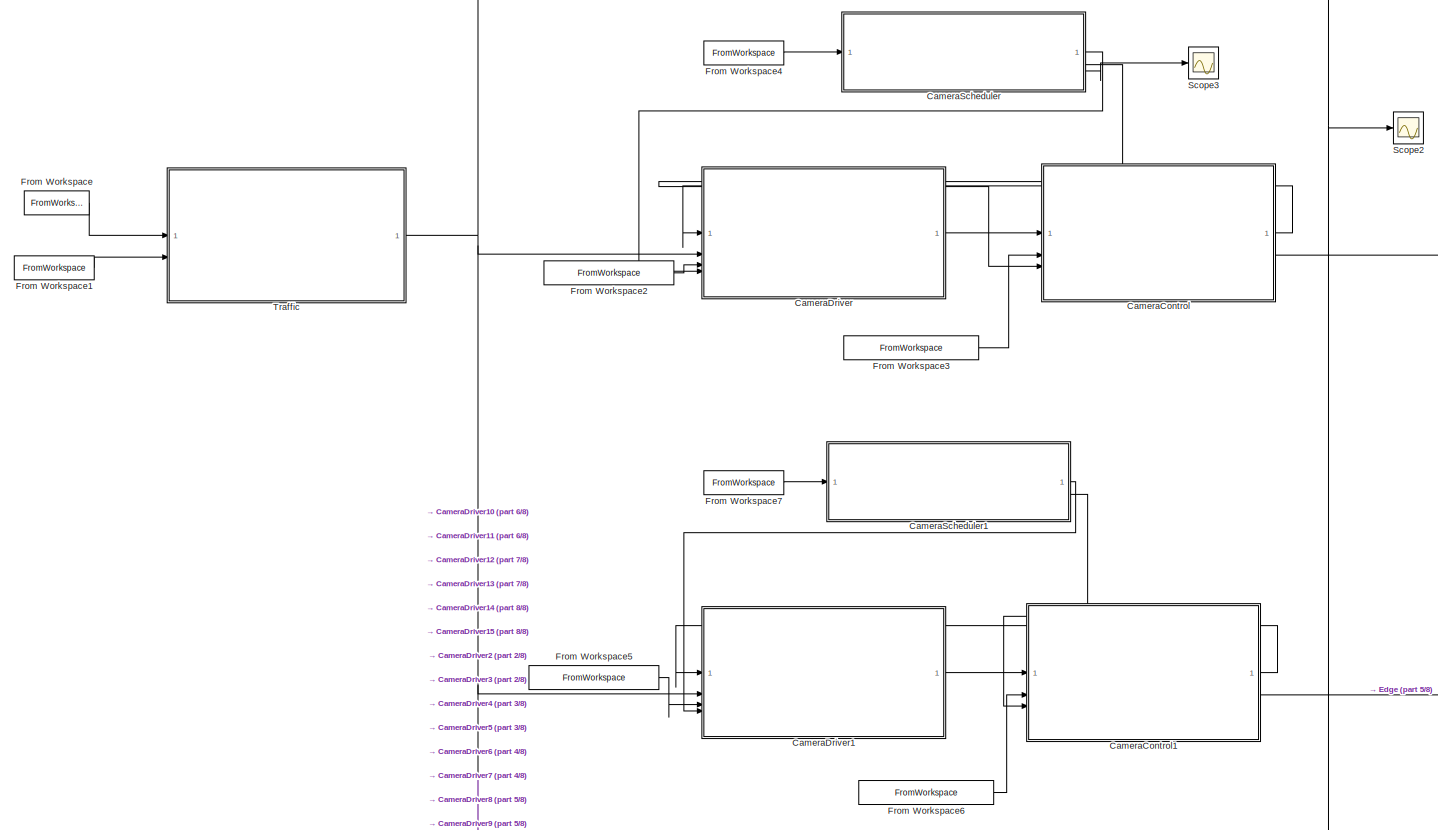
[diagram: root canvas - part 1/8, top center region]
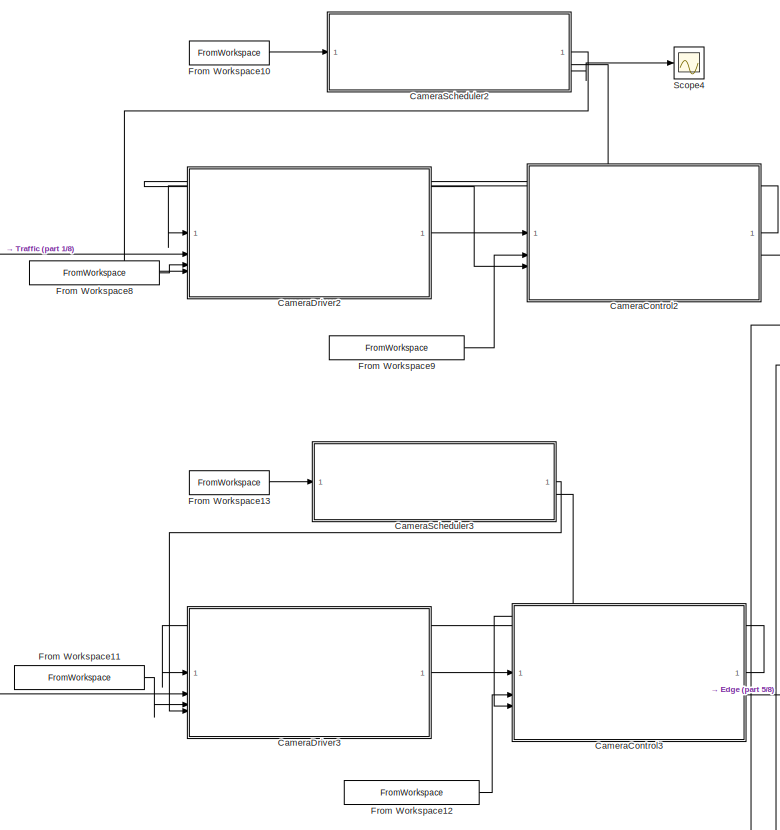
[diagram: root canvas - part 2/8, top center region]
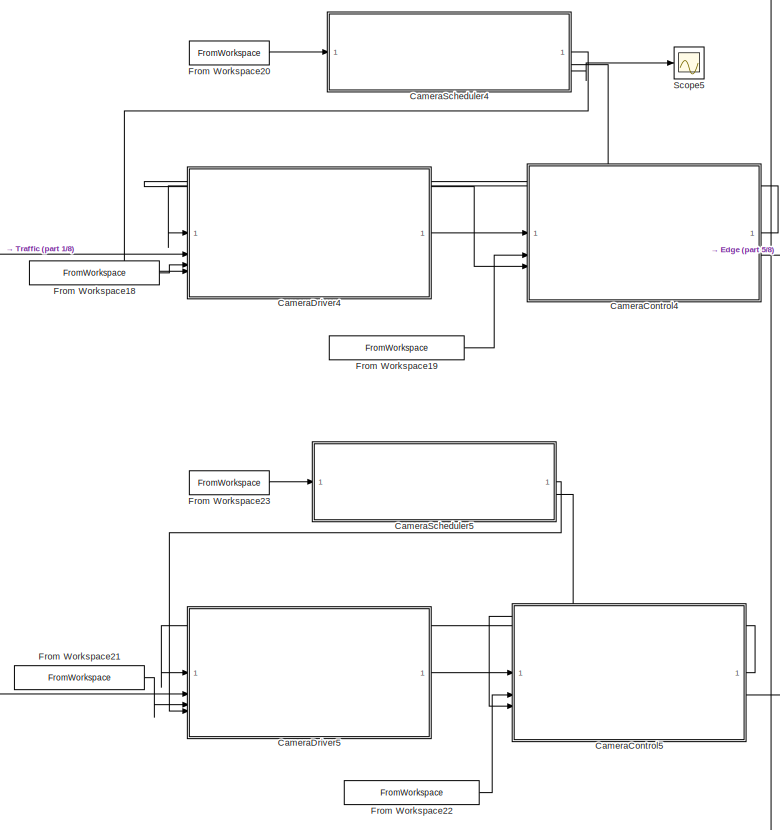
[diagram: root canvas - part 3/8, top center region]
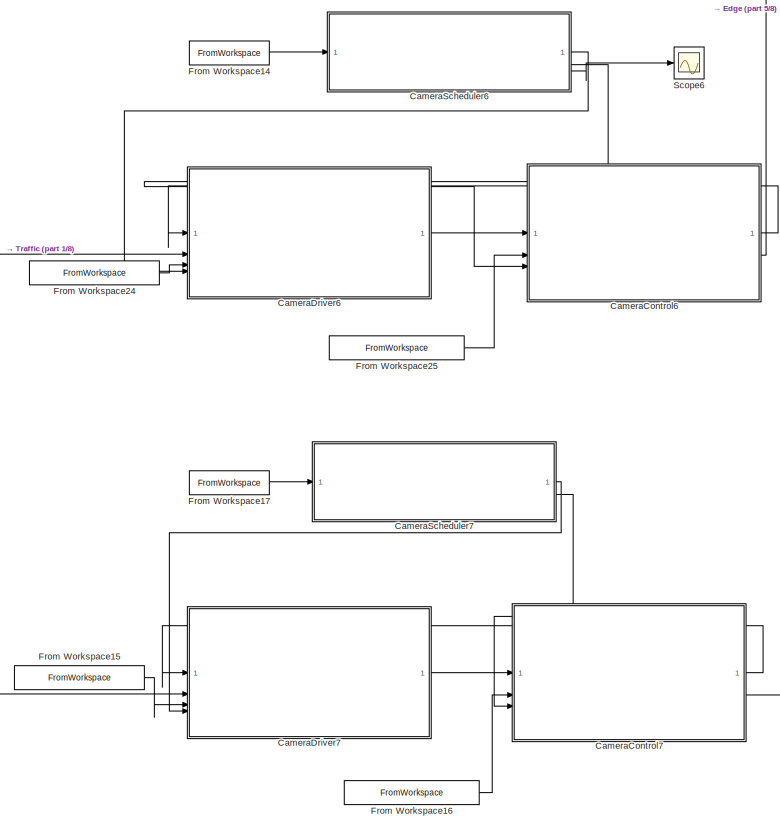
[diagram: root canvas - part 4/8, central region]
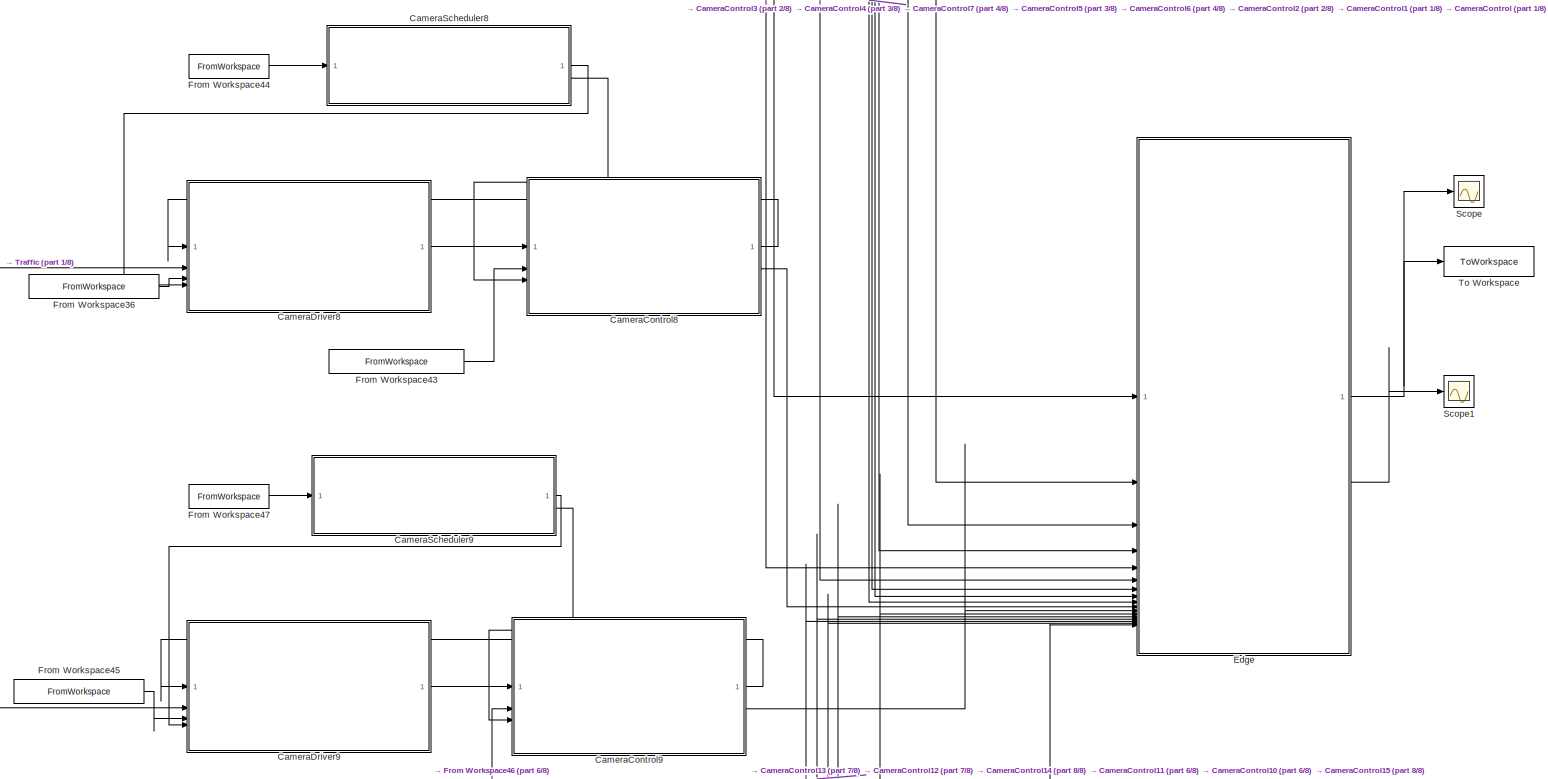
[diagram: root canvas - part 5/8, full width, middle band]
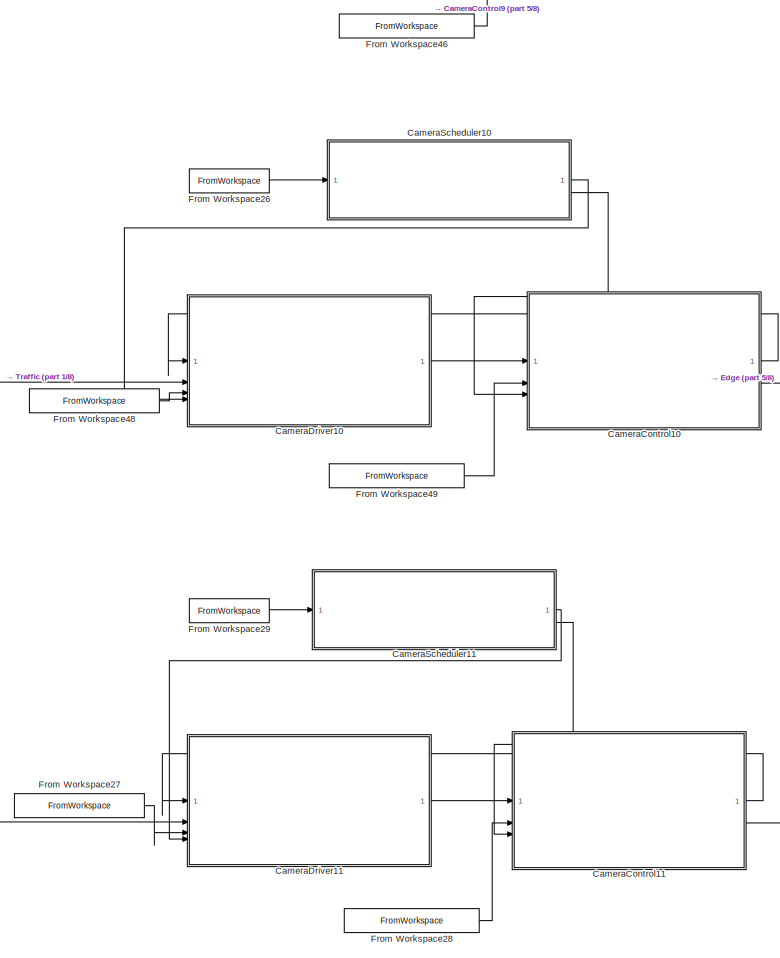
[diagram: root canvas - part 6/8, bottom center region]
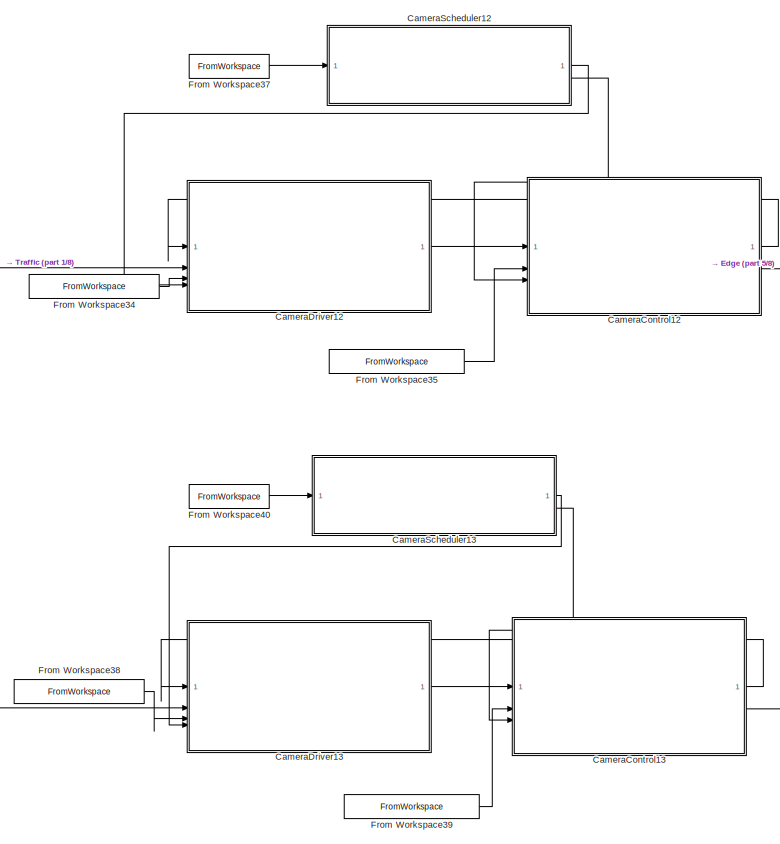
[diagram: root canvas - part 7/8, bottom center region]
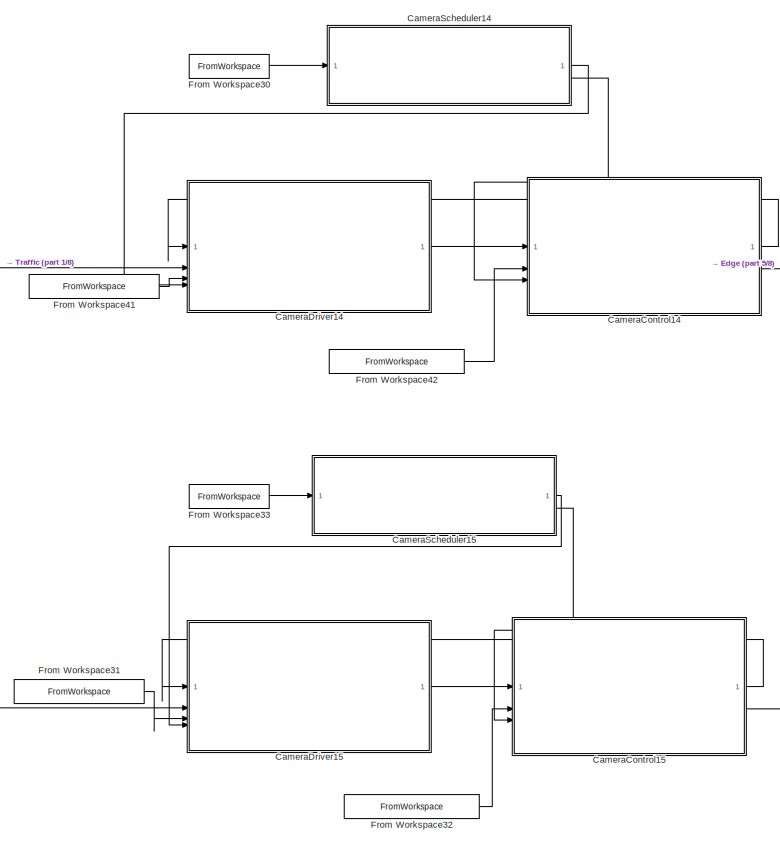
[diagram: root canvas - part 8/8, bottom center region]
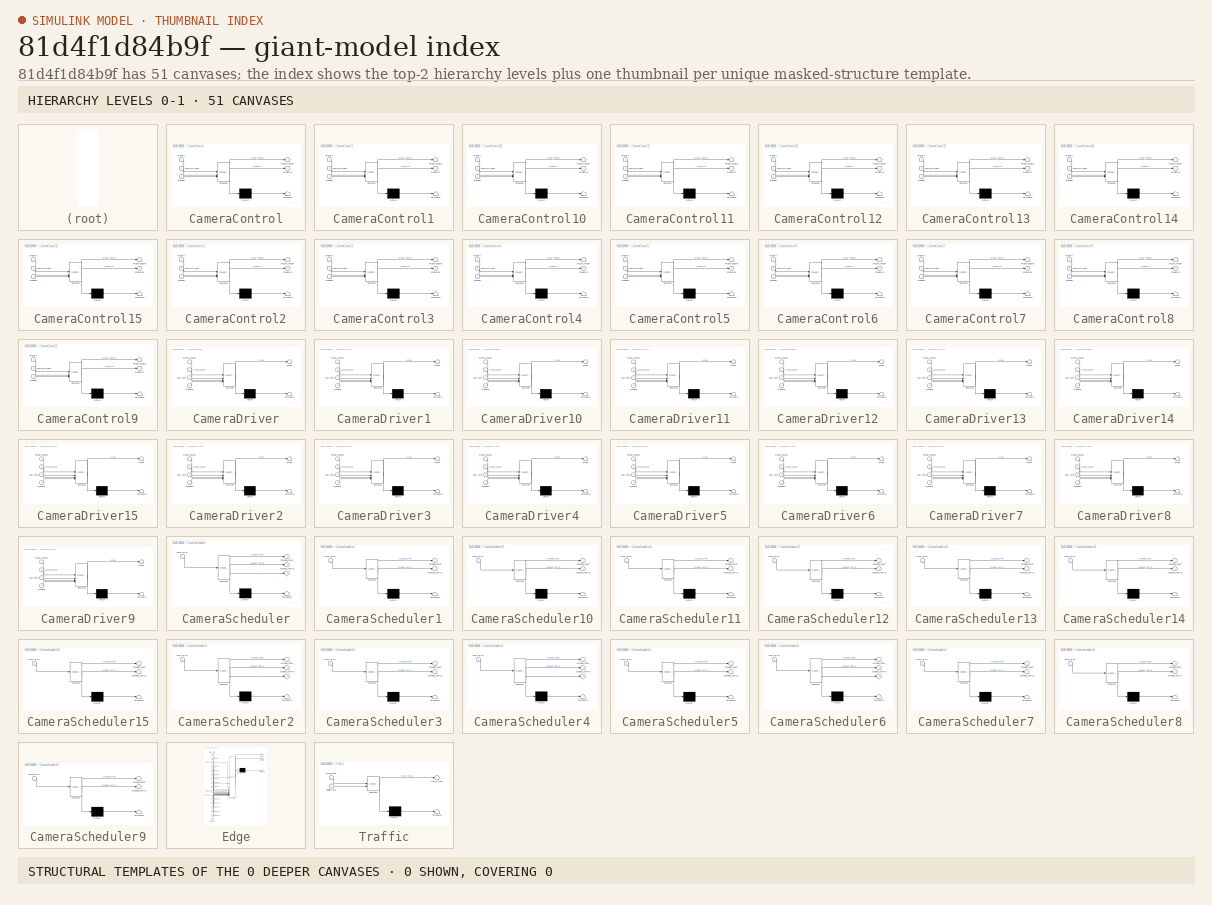
[diagram: thumbnail index - top-2 hierarchy levels (51 canvases) + 0 structural-template representatives of the remaining 0 canvases]
MODEL slx_81d4f1d84b9f
KIND model
CONFIG AbsTol = auto
CONFIG EnableMultiTasking = off
CONFIG FixedStep = auto
CONFIG MaxStep = auto
CONFIG MinStep = auto
CONFIG RelTol = 1e-3
CONFIG SampleTimeConstraint = Unconstrained
CONFIG SolverName = VariableStepAuto
CONFIG StartTime = 0.0
CONFIG StopTime = 3.0
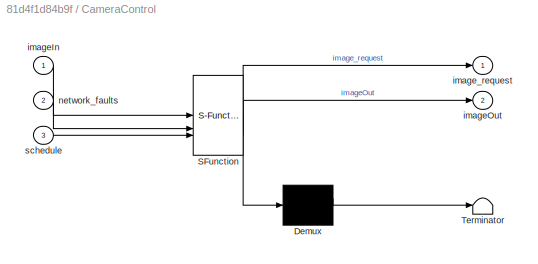
BLOCK [SubSystem] CameraControl
  ErrorFcn = Stateflow.Translate.translate
  PermitHierarchicalResolution = ExplicitOnly
  PortSchema = {"entries":[{"content":{"sides":[{"content":{"connectorIds":["In3","In1","In2"]},"type":"ConnectorPlacement.EquallySpacedRectSide","uuid":"ab620818-a51b-4a3c-9b00-600c4a6c30a0"},{"content":{"connectorIds":["Out1","Out2"],"side":"RIGHT"},"type":"ConnectorPlacement.EquallySpacedRectSide","uuid":"fd7d4612-1aa1-44dc-acf4-0ffdcf3f06ab"},{"content":{"side":"TOP"},"type":"ConnectorPlacement.EquallySpaced...<+241ch>  <repeated x16 — deduplicated; at blocks: CameraControl, CameraControl1, CameraControl10, CameraControl11, CameraControl12, CameraControl13, CameraControl14, CameraControl15, CameraControl2, CameraControl3, CameraControl4, CameraControl5, CameraControl6, CameraControl7, CameraControl8, CameraControl9>
  SFBlockType = Chart
  TreatAsAtomicUnit = on
BLOCK [Demux] CameraControl/ Demux 
  Outputs = 1
BLOCK [S-Function] CameraControl/ SFunction 
  EnableBusSupport = on
  FunctionName = sf_sfun
  InputPortMessageModes = m,n,m
  OutputPortMessageModes = n,n,m
  PortCounts = [3 3]
  SFcnIsStateOwnerBlock = off
  SFunctionDeploymentMode = off
  Tag = Stateflow S-Function 2
BLOCK [Terminator] CameraControl/ Terminator 
BLOCK [Inport] CameraControl/imageIn
BLOCK [Outport] CameraControl/imageOut
  Port = 2
BLOCK [Outport] CameraControl/image_request
BLOCK [Inport] CameraControl/network_faults
  Port = 2
BLOCK [Inport] CameraControl/schedule
  Port = 3
BLOCK [SubSystem] CameraControl1
  ErrorFcn = Stateflow.Translate.translate
  PermitHierarchicalResolution = ExplicitOnly
  SFBlockType = Chart
  TreatAsAtomicUnit = on
BLOCK [Demux] CameraControl1/ Demux 
  Outputs = 1
BLOCK [S-Function] CameraControl1/ SFunction 
  EnableBusSupport = on
  FunctionName = sf_sfun
  InputPortMessageModes = m,n,m
  OutputPortMessageModes = n,n,m
  PortCounts = [3 3]
  SFcnIsStateOwnerBlock = off
  SFunctionDeploymentMode = off
  Tag = Stateflow S-Function 6
BLOCK [Terminator] CameraControl1/ Terminator 
BLOCK [Inport] CameraControl1/imageIn
BLOCK [Outport] CameraControl1/imageOut
  Port = 2
BLOCK [Outport] CameraControl1/image_request
BLOCK [Inport] CameraControl1/network_faults
  Port = 2
BLOCK [Inport] CameraControl1/schedule
  Port = 3
BLOCK [SubSystem] CameraControl10
  ErrorFcn = Stateflow.Translate.translate
  PermitHierarchicalResolution = ExplicitOnly
  SFBlockType = Chart
  TreatAsAtomicUnit = on
BLOCK [Demux] CameraControl10/ Demux 
  Outputs = 1
BLOCK [S-Function] CameraControl10/ SFunction 
  EnableBusSupport = on
  FunctionName = sf_sfun
  InputPortMessageModes = m,n,m
  OutputPortMessageModes = n,n,m
  PortCounts = [3 3]
  SFcnIsStateOwnerBlock = off
  SFunctionDeploymentMode = off
  Tag = Stateflow S-Function 27
BLOCK [Terminator] CameraControl10/ Terminator 
BLOCK [Inport] CameraControl10/imageIn
BLOCK [Outport] CameraControl10/imageOut
  Port = 2
BLOCK [Outport] CameraControl10/image_request
BLOCK [Inport] CameraControl10/network_faults
  Port = 2
BLOCK [Inport] CameraControl10/schedule
  Port = 3
BLOCK [SubSystem] CameraControl11
  ErrorFcn = Stateflow.Translate.translate
  PermitHierarchicalResolution = ExplicitOnly
  SFBlockType = Chart
  TreatAsAtomicUnit = on
BLOCK [Demux] CameraControl11/ Demux 
  Outputs = 1
BLOCK [S-Function] CameraControl11/ SFunction 
  EnableBusSupport = on
  FunctionName = sf_sfun
  InputPortMessageModes = m,n,m
  OutputPortMessageModes = n,n,m
  PortCounts = [3 3]
  SFcnIsStateOwnerBlock = off
  SFunctionDeploymentMode = off
  Tag = Stateflow S-Function 28
BLOCK [Terminator] CameraControl11/ Terminator 
BLOCK [Inport] CameraControl11/imageIn
BLOCK [Outport] CameraControl11/imageOut
  Port = 2
BLOCK [Outport] CameraControl11/image_request
BLOCK [Inport] CameraControl11/network_faults
  Port = 2
BLOCK [Inport] CameraControl11/schedule
  Port = 3
BLOCK [SubSystem] CameraControl12
  ErrorFcn = Stateflow.Translate.translate
  PermitHierarchicalResolution = ExplicitOnly
  SFBlockType = Chart
  TreatAsAtomicUnit = on
BLOCK [Demux] CameraControl12/ Demux 
  Outputs = 1
BLOCK [S-Function] CameraControl12/ SFunction 
  EnableBusSupport = on
  FunctionName = sf_sfun
  InputPortMessageModes = m,n,m
  OutputPortMessageModes = n,n,m
  PortCounts = [3 3]
  SFcnIsStateOwnerBlock = off
  SFunctionDeploymentMode = off
  Tag = Stateflow S-Function 29
BLOCK [Terminator] CameraControl12/ Terminator 
BLOCK [Inport] CameraControl12/imageIn
BLOCK [Outport] CameraControl12/imageOut
  Port = 2
BLOCK [Outport] CameraControl12/image_request
BLOCK [Inport] CameraControl12/network_faults
  Port = 2
BLOCK [Inport] CameraControl12/schedule
  Port = 3
BLOCK [SubSystem] CameraControl13
  ErrorFcn = Stateflow.Translate.translate
  PermitHierarchicalResolution = ExplicitOnly
  SFBlockType = Chart
  TreatAsAtomicUnit = on
BLOCK [Demux] CameraControl13/ Demux 
  Outputs = 1
BLOCK [S-Function] CameraControl13/ SFunction 
  EnableBusSupport = on
  FunctionName = sf_sfun
  InputPortMessageModes = m,n,m
  OutputPortMessageModes = n,n,m
  PortCounts = [3 3]
  SFcnIsStateOwnerBlock = off
  SFunctionDeploymentMode = off
  Tag = Stateflow S-Function 30
BLOCK [Terminator] CameraControl13/ Terminator 
BLOCK [Inport] CameraControl13/imageIn
BLOCK [Outport] CameraControl13/imageOut
  Port = 2
BLOCK [Outport] CameraControl13/image_request
BLOCK [Inport] CameraControl13/network_faults
  Port = 2
BLOCK [Inport] CameraControl13/schedule
  Port = 3
BLOCK [SubSystem] CameraControl14
  ErrorFcn = Stateflow.Translate.translate
  PermitHierarchicalResolution = ExplicitOnly
  SFBlockType = Chart
  TreatAsAtomicUnit = on
BLOCK [Demux] CameraControl14/ Demux 
  Outputs = 1
BLOCK [S-Function] CameraControl14/ SFunction 
  EnableBusSupport = on
  FunctionName = sf_sfun
  InputPortMessageModes = m,n,m
  OutputPortMessageModes = n,n,m
  PortCounts = [3 3]
  SFcnIsStateOwnerBlock = off
  SFunctionDeploymentMode = off
  Tag = Stateflow S-Function 31
BLOCK [Terminator] CameraControl14/ Terminator 
BLOCK [Inport] CameraControl14/imageIn
BLOCK [Outport] CameraControl14/imageOut
  Port = 2
BLOCK [Outport] CameraControl14/image_request
BLOCK [Inport] CameraControl14/network_faults
  Port = 2
BLOCK [Inport] CameraControl14/schedule
  Port = 3
BLOCK [SubSystem] CameraControl15
  ErrorFcn = Stateflow.Translate.translate
  PermitHierarchicalResolution = ExplicitOnly
  SFBlockType = Chart
  TreatAsAtomicUnit = on
BLOCK [Demux] CameraControl15/ Demux 
  Outputs = 1
BLOCK [S-Function] CameraControl15/ SFunction 
  EnableBusSupport = on
  FunctionName = sf_sfun
  InputPortMessageModes = m,n,m
  OutputPortMessageModes = n,n,m
  PortCounts = [3 3]
  SFcnIsStateOwnerBlock = off
  SFunctionDeploymentMode = off
  Tag = Stateflow S-Function 32
BLOCK [Terminator] CameraControl15/ Terminator 
BLOCK [Inport] CameraControl15/imageIn
BLOCK [Outport] CameraControl15/imageOut
  Port = 2
BLOCK [Outport] CameraControl15/image_request
BLOCK [Inport] CameraControl15/network_faults
  Port = 2
BLOCK [Inport] CameraControl15/schedule
  Port = 3
BLOCK [SubSystem] CameraControl2
  ErrorFcn = Stateflow.Translate.translate
  PermitHierarchicalResolution = ExplicitOnly
  SFBlockType = Chart
  TreatAsAtomicUnit = on
BLOCK [Demux] CameraControl2/ Demux 
  Outputs = 1
BLOCK [S-Function] CameraControl2/ SFunction 
  EnableBusSupport = on
  FunctionName = sf_sfun
  InputPortMessageModes = m,n,m
  OutputPortMessageModes = n,n,m
  PortCounts = [3 3]
  SFcnIsStateOwnerBlock = off
  SFunctionDeploymentMode = off
  Tag = Stateflow S-Function 9
BLOCK [Terminator] CameraControl2/ Terminator 
BLOCK [Inport] CameraControl2/imageIn
BLOCK [Outport] CameraControl2/imageOut
  Port = 2
BLOCK [Outport] CameraControl2/image_request
BLOCK [Inport] CameraControl2/network_faults
  Port = 2
BLOCK [Inport] CameraControl2/schedule
  Port = 3
BLOCK [SubSystem] CameraControl3
  ErrorFcn = Stateflow.Translate.translate
  PermitHierarchicalResolution = ExplicitOnly
  SFBlockType = Chart
  TreatAsAtomicUnit = on
BLOCK [Demux] CameraControl3/ Demux 
  Outputs = 1
BLOCK [S-Function] CameraControl3/ SFunction 
  EnableBusSupport = on
  FunctionName = sf_sfun
  InputPortMessageModes = m,n,m
  OutputPortMessageModes = n,n,m
  PortCounts = [3 3]
  SFcnIsStateOwnerBlock = off
  SFunctionDeploymentMode = off
  Tag = Stateflow S-Function 10
BLOCK [Terminator] CameraControl3/ Terminator 
BLOCK [Inport] CameraControl3/imageIn
BLOCK [Outport] CameraControl3/imageOut
  Port = 2
BLOCK [Outport] CameraControl3/image_request
BLOCK [Inport] CameraControl3/network_faults
  Port = 2
BLOCK [Inport] CameraControl3/schedule
  Port = 3
BLOCK [SubSystem] CameraControl4
  ErrorFcn = Stateflow.Translate.translate
  PermitHierarchicalResolution = ExplicitOnly
  SFBlockType = Chart
  TreatAsAtomicUnit = on
BLOCK [Demux] CameraControl4/ Demux 
  Outputs = 1
BLOCK [S-Function] CameraControl4/ SFunction 
  EnableBusSupport = on
  FunctionName = sf_sfun
  InputPortMessageModes = m,n,m
  OutputPortMessageModes = n,n,m
  PortCounts = [3 3]
  SFcnIsStateOwnerBlock = off
  SFunctionDeploymentMode = off
  Tag = Stateflow S-Function 15
BLOCK [Terminator] CameraControl4/ Terminator 
BLOCK [Inport] CameraControl4/imageIn
BLOCK [Outport] CameraControl4/imageOut
  Port = 2
BLOCK [Outport] CameraControl4/image_request
BLOCK [Inport] CameraControl4/network_faults
  Port = 2
BLOCK [Inport] CameraControl4/schedule
  Port = 3
BLOCK [SubSystem] CameraControl5
  ErrorFcn = Stateflow.Translate.translate
  PermitHierarchicalResolution = ExplicitOnly
  SFBlockType = Chart
  TreatAsAtomicUnit = on
BLOCK [Demux] CameraControl5/ Demux 
  Outputs = 1
BLOCK [S-Function] CameraControl5/ SFunction 
  EnableBusSupport = on
  FunctionName = sf_sfun
  InputPortMessageModes = m,n,m
  OutputPortMessageModes = n,n,m
  PortCounts = [3 3]
  SFcnIsStateOwnerBlock = off
  SFunctionDeploymentMode = off
  Tag = Stateflow S-Function 16
BLOCK [Terminator] CameraControl5/ Terminator 
BLOCK [Inport] CameraControl5/imageIn
BLOCK [Outport] CameraControl5/imageOut
  Port = 2
BLOCK [Outport] CameraControl5/image_request
BLOCK [Inport] CameraControl5/network_faults
  Port = 2
BLOCK [Inport] CameraControl5/schedule
  Port = 3
BLOCK [SubSystem] CameraControl6
  ErrorFcn = Stateflow.Translate.translate
  PermitHierarchicalResolution = ExplicitOnly
  SFBlockType = Chart
  TreatAsAtomicUnit = on
BLOCK [Demux] CameraControl6/ Demux 
  Outputs = 1
BLOCK [S-Function] CameraControl6/ SFunction 
  EnableBusSupport = on
  FunctionName = sf_sfun
  InputPortMessageModes = m,n,m
  OutputPortMessageModes = n,n,m
  PortCounts = [3 3]
  SFcnIsStateOwnerBlock = off
  SFunctionDeploymentMode = off
  Tag = Stateflow S-Function 17
BLOCK [Terminator] CameraControl6/ Terminator 
BLOCK [Inport] CameraControl6/imageIn
BLOCK [Outport] CameraControl6/imageOut
  Port = 2
BLOCK [Outport] CameraControl6/image_request
BLOCK [Inport] CameraControl6/network_faults
  Port = 2
BLOCK [Inport] CameraControl6/schedule
  Port = 3
BLOCK [SubSystem] CameraControl7
  ErrorFcn = Stateflow.Translate.translate
  PermitHierarchicalResolution = ExplicitOnly
  SFBlockType = Chart
  TreatAsAtomicUnit = on
BLOCK [Demux] CameraControl7/ Demux 
  Outputs = 1
BLOCK [S-Function] CameraControl7/ SFunction 
  EnableBusSupport = on
  FunctionName = sf_sfun
  InputPortMessageModes = m,n,m
  OutputPortMessageModes = n,n,m
  PortCounts = [3 3]
  SFcnIsStateOwnerBlock = off
  SFunctionDeploymentMode = off
  Tag = Stateflow S-Function 18
BLOCK [Terminator] CameraControl7/ Terminator 
BLOCK [Inport] CameraControl7/imageIn
BLOCK [Outport] CameraControl7/imageOut
  Port = 2
BLOCK [Outport] CameraControl7/image_request
BLOCK [Inport] CameraControl7/network_faults
  Port = 2
BLOCK [Inport] CameraControl7/schedule
  Port = 3
BLOCK [SubSystem] CameraControl8
  ErrorFcn = Stateflow.Translate.translate
  PermitHierarchicalResolution = ExplicitOnly
  SFBlockType = Chart
  TreatAsAtomicUnit = on
BLOCK [Demux] CameraControl8/ Demux 
  Outputs = 1
BLOCK [S-Function] CameraControl8/ SFunction 
  EnableBusSupport = on
  FunctionName = sf_sfun
  InputPortMessageModes = m,n,m
  OutputPortMessageModes = n,n,m
  PortCounts = [3 3]
  SFcnIsStateOwnerBlock = off
  SFunctionDeploymentMode = off
  Tag = Stateflow S-Function 33
BLOCK [Terminator] CameraControl8/ Terminator 
BLOCK [Inport] CameraControl8/imageIn
BLOCK [Outport] CameraControl8/imageOut
  Port = 2
BLOCK [Outport] CameraControl8/image_request
BLOCK [Inport] CameraControl8/network_faults
  Port = 2
BLOCK [Inport] CameraControl8/schedule
  Port = 3
BLOCK [SubSystem] CameraControl9
  ErrorFcn = Stateflow.Translate.translate
  PermitHierarchicalResolution = ExplicitOnly
  SFBlockType = Chart
  TreatAsAtomicUnit = on
BLOCK [Demux] CameraControl9/ Demux 
  Outputs = 1
BLOCK [S-Function] CameraControl9/ SFunction 
  EnableBusSupport = on
  FunctionName = sf_sfun
  InputPortMessageModes = m,n,m
  OutputPortMessageModes = n,n,m
  PortCounts = [3 3]
  SFcnIsStateOwnerBlock = off
  SFunctionDeploymentMode = off
  Tag = Stateflow S-Function 34
BLOCK [Terminator] CameraControl9/ Terminator 
BLOCK [Inport] CameraControl9/imageIn
BLOCK [Outport] CameraControl9/imageOut
  Port = 2
BLOCK [Outport] CameraControl9/image_request
BLOCK [Inport] CameraControl9/network_faults
  Port = 2
BLOCK [Inport] CameraControl9/schedule
  Port = 3
BLOCK [SubSystem] CameraDriver
  ErrorFcn = Stateflow.Translate.translate
  PermitHierarchicalResolution = ExplicitOnly
  PortSchema = {"entries":[{"content":{"sides":[{"content":{"connectorIds":["In4","In1","In2","In3"]},"type":"ConnectorPlacement.EquallySpacedRectSide","uuid":"49bdffc0-8e15-4462-b991-b36534669558"},{"content":{"connectorIds":["Out1"],"side":"RIGHT"},"type":"ConnectorPlacement.EquallySpacedRectSide","uuid":"379950e5-a8e3-41fb-8f45-c3d731cfbd8a"},{"content":{"side":"TOP"},"type":"ConnectorPlacement.EquallySpacedR...<+240ch>  <repeated x16 — deduplicated; at blocks: CameraDriver, CameraDriver1, CameraDriver10, CameraDriver11, CameraDriver12, CameraDriver13, CameraDriver14, CameraDriver15, CameraDriver2, CameraDriver3, CameraDriver4, CameraDriver5, CameraDriver6, CameraDriver7, CameraDriver8, CameraDriver9>
  SFBlockType = Chart
  TreatAsAtomicUnit = on
BLOCK [Demux] CameraDriver/ Demux 
  Outputs = 1
BLOCK [S-Function] CameraDriver/ SFunction 
  EnableBusSupport = on
  FunctionName = sf_sfun
  InputPortMessageModes = n,n,n,m
  OutputPortMessageModes = n,m
  PortCounts = [4 2]
  SFcnIsStateOwnerBlock = off
  SFunctionDeploymentMode = off
  Tag = Stateflow S-Function 1
BLOCK [Terminator] CameraDriver/ Terminator 
BLOCK [Inport] CameraDriver/blurryness
  Port = 3
BLOCK [Outport] CameraDriver/image
BLOCK [Inport] CameraDriver/image_request
BLOCK [Inport] CameraDriver/schedule
  Port = 4
BLOCK [Inport] CameraDriver/traffic_state
  Port = 2
BLOCK [SubSystem] CameraDriver1
  ErrorFcn = Stateflow.Translate.translate
  PermitHierarchicalResolution = ExplicitOnly
  SFBlockType = Chart
  TreatAsAtomicUnit = on
BLOCK [Demux] CameraDriver1/ Demux 
  Outputs = 1
BLOCK [S-Function] CameraDriver1/ SFunction 
  EnableBusSupport = on
  FunctionName = sf_sfun
  InputPortMessageModes = n,n,n,m
  OutputPortMessageModes = n,m
  PortCounts = [4 2]
  SFcnIsStateOwnerBlock = off
  SFunctionDeploymentMode = off
  Tag = Stateflow S-Function 7
BLOCK [Terminator] CameraDriver1/ Terminator 
BLOCK [Inport] CameraDriver1/blurryness
  Port = 3
BLOCK [Outport] CameraDriver1/image
BLOCK [Inport] CameraDriver1/image_request
BLOCK [Inport] CameraDriver1/schedule
  Port = 4
BLOCK [Inport] CameraDriver1/traffic_state
  Port = 2
BLOCK [SubSystem] CameraDriver10
  ErrorFcn = Stateflow.Translate.translate
  PermitHierarchicalResolution = ExplicitOnly
  SFBlockType = Chart
  TreatAsAtomicUnit = on
BLOCK [Demux] CameraDriver10/ Demux 
  Outputs = 1
BLOCK [S-Function] CameraDriver10/ SFunction 
  EnableBusSupport = on
  FunctionName = sf_sfun
  InputPortMessageModes = n,n,n,m
  OutputPortMessageModes = n,m
  PortCounts = [4 2]
  SFcnIsStateOwnerBlock = off
  SFunctionDeploymentMode = off
  Tag = Stateflow S-Function 35
BLOCK [Terminator] CameraDriver10/ Terminator 
BLOCK [Inport] CameraDriver10/blurryness
  Port = 3
BLOCK [Outport] CameraDriver10/image
BLOCK [Inport] CameraDriver10/image_request
BLOCK [Inport] CameraDriver10/schedule
  Port = 4
BLOCK [Inport] CameraDriver10/traffic_state
  Port = 2
BLOCK [SubSystem] CameraDriver11
  ErrorFcn = Stateflow.Translate.translate
  PermitHierarchicalResolution = ExplicitOnly
  SFBlockType = Chart
  TreatAsAtomicUnit = on
BLOCK [Demux] CameraDriver11/ Demux 
  Outputs = 1
BLOCK [S-Function] CameraDriver11/ SFunction 
  EnableBusSupport = on
  FunctionName = sf_sfun
  InputPortMessageModes = n,n,n,m
  OutputPortMessageModes = n,m
  PortCounts = [4 2]
  SFcnIsStateOwnerBlock = off
  SFunctionDeploymentMode = off
  Tag = Stateflow S-Function 36
BLOCK [Terminator] CameraDriver11/ Terminator 
BLOCK [Inport] CameraDriver11/blurryness
  Port = 3
BLOCK [Outport] CameraDriver11/image
BLOCK [Inport] CameraDriver11/image_request
BLOCK [Inport] CameraDriver11/schedule
  Port = 4
BLOCK [Inport] CameraDriver11/traffic_state
  Port = 2
BLOCK [SubSystem] CameraDriver12
  ErrorFcn = Stateflow.Translate.translate
  PermitHierarchicalResolution = ExplicitOnly
  SFBlockType = Chart
  TreatAsAtomicUnit = on
BLOCK [Demux] CameraDriver12/ Demux 
  Outputs = 1
BLOCK [S-Function] CameraDriver12/ SFunction 
  EnableBusSupport = on
  FunctionName = sf_sfun
  InputPortMessageModes = n,n,n,m
  OutputPortMessageModes = n,m
  PortCounts = [4 2]
  SFcnIsStateOwnerBlock = off
  SFunctionDeploymentMode = off
  Tag = Stateflow S-Function 37
BLOCK [Terminator] CameraDriver12/ Terminator 
BLOCK [Inport] CameraDriver12/blurryness
  Port = 3
BLOCK [Outport] CameraDriver12/image
BLOCK [Inport] CameraDriver12/image_request
BLOCK [Inport] CameraDriver12/schedule
  Port = 4
BLOCK [Inport] CameraDriver12/traffic_state
  Port = 2
BLOCK [SubSystem] CameraDriver13
  ErrorFcn = Stateflow.Translate.translate
  PermitHierarchicalResolution = ExplicitOnly
  SFBlockType = Chart
  TreatAsAtomicUnit = on
BLOCK [Demux] CameraDriver13/ Demux 
  Outputs = 1
BLOCK [S-Function] CameraDriver13/ SFunction 
  EnableBusSupport = on
  FunctionName = sf_sfun
  InputPortMessageModes = n,n,n,m
  OutputPortMessageModes = n,m
  PortCounts = [4 2]
  SFcnIsStateOwnerBlock = off
  SFunctionDeploymentMode = off
  Tag = Stateflow S-Function 38
BLOCK [Terminator] CameraDriver13/ Terminator 
BLOCK [Inport] CameraDriver13/blurryness
  Port = 3
BLOCK [Outport] CameraDriver13/image
BLOCK [Inport] CameraDriver13/image_request
BLOCK [Inport] CameraDriver13/schedule
  Port = 4
BLOCK [Inport] CameraDriver13/traffic_state
  Port = 2
BLOCK [SubSystem] CameraDriver14
  ErrorFcn = Stateflow.Translate.translate
  PermitHierarchicalResolution = ExplicitOnly
  SFBlockType = Chart
  TreatAsAtomicUnit = on
BLOCK [Demux] CameraDriver14/ Demux 
  Outputs = 1
BLOCK [S-Function] CameraDriver14/ SFunction 
  EnableBusSupport = on
  FunctionName = sf_sfun
  InputPortMessageModes = n,n,n,m
  OutputPortMessageModes = n,m
  PortCounts = [4 2]
  SFcnIsStateOwnerBlock = off
  SFunctionDeploymentMode = off
  Tag = Stateflow S-Function 39
BLOCK [Terminator] CameraDriver14/ Terminator 
BLOCK [Inport] CameraDriver14/blurryness
  Port = 3
BLOCK [Outport] CameraDriver14/image
BLOCK [Inport] CameraDriver14/image_request
BLOCK [Inport] CameraDriver14/schedule
  Port = 4
BLOCK [Inport] CameraDriver14/traffic_state
  Port = 2
BLOCK [SubSystem] CameraDriver15
  ErrorFcn = Stateflow.Translate.translate
  PermitHierarchicalResolution = ExplicitOnly
  SFBlockType = Chart
  TreatAsAtomicUnit = on
BLOCK [Demux] CameraDriver15/ Demux 
  Outputs = 1
BLOCK [S-Function] CameraDriver15/ SFunction 
  EnableBusSupport = on
  FunctionName = sf_sfun
  InputPortMessageModes = n,n,n,m
  OutputPortMessageModes = n,m
  PortCounts = [4 2]
  SFcnIsStateOwnerBlock = off
  SFunctionDeploymentMode = off
  Tag = Stateflow S-Function 40
BLOCK [Terminator] CameraDriver15/ Terminator 
BLOCK [Inport] CameraDriver15/blurryness
  Port = 3
BLOCK [Outport] CameraDriver15/image
BLOCK [Inport] CameraDriver15/image_request
BLOCK [Inport] CameraDriver15/schedule
  Port = 4
BLOCK [Inport] CameraDriver15/traffic_state
  Port = 2
BLOCK [SubSystem] CameraDriver2
  ErrorFcn = Stateflow.Translate.translate
  PermitHierarchicalResolution = ExplicitOnly
  SFBlockType = Chart
  TreatAsAtomicUnit = on
BLOCK [Demux] CameraDriver2/ Demux 
  Outputs = 1
BLOCK [S-Function] CameraDriver2/ SFunction 
  EnableBusSupport = on
  FunctionName = sf_sfun
  InputPortMessageModes = n,n,n,m
  OutputPortMessageModes = n,m
  PortCounts = [4 2]
  SFcnIsStateOwnerBlock = off
  SFunctionDeploymentMode = off
  Tag = Stateflow S-Function 11
BLOCK [Terminator] CameraDriver2/ Terminator 
BLOCK [Inport] CameraDriver2/blurryness
  Port = 3
BLOCK [Outport] CameraDriver2/image
BLOCK [Inport] CameraDriver2/image_request
BLOCK [Inport] CameraDriver2/schedule
  Port = 4
BLOCK [Inport] CameraDriver2/traffic_state
  Port = 2
BLOCK [SubSystem] CameraDriver3
  ErrorFcn = Stateflow.Translate.translate
  PermitHierarchicalResolution = ExplicitOnly
  SFBlockType = Chart
  TreatAsAtomicUnit = on
BLOCK [Demux] CameraDriver3/ Demux 
  Outputs = 1
BLOCK [S-Function] CameraDriver3/ SFunction 
  EnableBusSupport = on
  FunctionName = sf_sfun
  InputPortMessageModes = n,n,n,m
  OutputPortMessageModes = n,m
  PortCounts = [4 2]
  SFcnIsStateOwnerBlock = off
  SFunctionDeploymentMode = off
  Tag = Stateflow S-Function 12
BLOCK [Terminator] CameraDriver3/ Terminator 
BLOCK [Inport] CameraDriver3/blurryness
  Port = 3
BLOCK [Outport] CameraDriver3/image
BLOCK [Inport] CameraDriver3/image_request
BLOCK [Inport] CameraDriver3/schedule
  Port = 4
BLOCK [Inport] CameraDriver3/traffic_state
  Port = 2
BLOCK [SubSystem] CameraDriver4
  ErrorFcn = Stateflow.Translate.translate
  PermitHierarchicalResolution = ExplicitOnly
  SFBlockType = Chart
  TreatAsAtomicUnit = on
BLOCK [Demux] CameraDriver4/ Demux 
  Outputs = 1
BLOCK [S-Function] CameraDriver4/ SFunction 
  EnableBusSupport = on
  FunctionName = sf_sfun
  InputPortMessageModes = n,n,n,m
  OutputPortMessageModes = n,m
  PortCounts = [4 2]
  SFcnIsStateOwnerBlock = off
  SFunctionDeploymentMode = off
  Tag = Stateflow S-Function 19
BLOCK [Terminator] CameraDriver4/ Terminator 
BLOCK [Inport] CameraDriver4/blurryness
  Port = 3
BLOCK [Outport] CameraDriver4/image
BLOCK [Inport] CameraDriver4/image_request
BLOCK [Inport] CameraDriver4/schedule
  Port = 4
BLOCK [Inport] CameraDriver4/traffic_state
  Port = 2
BLOCK [SubSystem] CameraDriver5
  ErrorFcn = Stateflow.Translate.translate
  PermitHierarchicalResolution = ExplicitOnly
  SFBlockType = Chart
  TreatAsAtomicUnit = on
BLOCK [Demux] CameraDriver5/ Demux 
  Outputs = 1
BLOCK [S-Function] CameraDriver5/ SFunction 
  EnableBusSupport = on
  FunctionName = sf_sfun
  InputPortMessageModes = n,n,n,m
  OutputPortMessageModes = n,m
  PortCounts = [4 2]
  SFcnIsStateOwnerBlock = off
  SFunctionDeploymentMode = off
  Tag = Stateflow S-Function 20
BLOCK [Terminator] CameraDriver5/ Terminator 
BLOCK [Inport] CameraDriver5/blurryness
  Port = 3
BLOCK [Outport] CameraDriver5/image
BLOCK [Inport] CameraDriver5/image_request
BLOCK [Inport] CameraDriver5/schedule
  Port = 4
BLOCK [Inport] CameraDriver5/traffic_state
  Port = 2
BLOCK [SubSystem] CameraDriver6
  ErrorFcn = Stateflow.Translate.translate
  PermitHierarchicalResolution = ExplicitOnly
  SFBlockType = Chart
  TreatAsAtomicUnit = on
BLOCK [Demux] CameraDriver6/ Demux 
  Outputs = 1
BLOCK [S-Function] CameraDriver6/ SFunction 
  EnableBusSupport = on
  FunctionName = sf_sfun
  InputPortMessageModes = n,n,n,m
  OutputPortMessageModes = n,m
  PortCounts = [4 2]
  SFcnIsStateOwnerBlock = off
  SFunctionDeploymentMode = off
  Tag = Stateflow S-Function 21
BLOCK [Terminator] CameraDriver6/ Terminator 
BLOCK [Inport] CameraDriver6/blurryness
  Port = 3
BLOCK [Outport] CameraDriver6/image
BLOCK [Inport] CameraDriver6/image_request
BLOCK [Inport] CameraDriver6/schedule
  Port = 4
BLOCK [Inport] CameraDriver6/traffic_state
  Port = 2
BLOCK [SubSystem] CameraDriver7
  ErrorFcn = Stateflow.Translate.translate
  PermitHierarchicalResolution = ExplicitOnly
  SFBlockType = Chart
  TreatAsAtomicUnit = on
BLOCK [Demux] CameraDriver7/ Demux 
  Outputs = 1
BLOCK [S-Function] CameraDriver7/ SFunction 
  EnableBusSupport = on
  FunctionName = sf_sfun
  InputPortMessageModes = n,n,n,m
  OutputPortMessageModes = n,m
  PortCounts = [4 2]
  SFcnIsStateOwnerBlock = off
  SFunctionDeploymentMode = off
  Tag = Stateflow S-Function 22
BLOCK [Terminator] CameraDriver7/ Terminator 
BLOCK [Inport] CameraDriver7/blurryness
  Port = 3
BLOCK [Outport] CameraDriver7/image
BLOCK [Inport] CameraDriver7/image_request
BLOCK [Inport] CameraDriver7/schedule
  Port = 4
BLOCK [Inport] CameraDriver7/traffic_state
  Port = 2
BLOCK [SubSystem] CameraDriver8
  ErrorFcn = Stateflow.Translate.translate
  PermitHierarchicalResolution = ExplicitOnly
  SFBlockType = Chart
  TreatAsAtomicUnit = on
BLOCK [Demux] CameraDriver8/ Demux 
  Outputs = 1
BLOCK [S-Function] CameraDriver8/ SFunction 
  EnableBusSupport = on
  FunctionName = sf_sfun
  InputPortMessageModes = n,n,n,m
  OutputPortMessageModes = n,m
  PortCounts = [4 2]
  SFcnIsStateOwnerBlock = off
  SFunctionDeploymentMode = off
  Tag = Stateflow S-Function 41
BLOCK [Terminator] CameraDriver8/ Terminator 
BLOCK [Inport] CameraDriver8/blurryness
  Port = 3
BLOCK [Outport] CameraDriver8/image
BLOCK [Inport] CameraDriver8/image_request
BLOCK [Inport] CameraDriver8/schedule
  Port = 4
BLOCK [Inport] CameraDriver8/traffic_state
  Port = 2
BLOCK [SubSystem] CameraDriver9
  ErrorFcn = Stateflow.Translate.translate
  PermitHierarchicalResolution = ExplicitOnly
  SFBlockType = Chart
  TreatAsAtomicUnit = on
BLOCK [Demux] CameraDriver9/ Demux 
  Outputs = 1
BLOCK [S-Function] CameraDriver9/ SFunction 
  EnableBusSupport = on
  FunctionName = sf_sfun
  InputPortMessageModes = n,n,n,m
  OutputPortMessageModes = n,m
  PortCounts = [4 2]
  SFcnIsStateOwnerBlock = off
  SFunctionDeploymentMode = off
  Tag = Stateflow S-Function 42
BLOCK [Terminator] CameraDriver9/ Terminator 
BLOCK [Inport] CameraDriver9/blurryness
  Port = 3
BLOCK [Outport] CameraDriver9/image
BLOCK [Inport] CameraDriver9/image_request
BLOCK [Inport] CameraDriver9/schedule
  Port = 4
BLOCK [Inport] CameraDriver9/traffic_state
  Port = 2
BLOCK [SubSystem] CameraScheduler
  ErrorFcn = Stateflow.Translate.translate
  PermitHierarchicalResolution = ExplicitOnly
  PortSchema = {"entries":[{"content":{"sides":[{"content":{"connectorIds":["In1"]},"type":"ConnectorPlacement.EquallySpacedRectSide","uuid":"228150a7-62a2-46d0-a1ac-a8e868d835b5"},{"content":{"connectorIds":["Out2","Out3","Out1"],"side":"RIGHT"},"type":"ConnectorPlacement.EquallySpacedRectSide","uuid":"cb1c6840-c5bf-4913-92c2-1c054d368f87"},{"content":{"side":"TOP"},"type":"ConnectorPlacement.EquallySpacedRectS...<+236ch>  <repeated x4 — deduplicated; at blocks: CameraScheduler, CameraScheduler2, CameraScheduler4, CameraScheduler6>
  SFBlockType = Chart
  TreatAsAtomicUnit = on
BLOCK [Demux] CameraScheduler/ Demux 
  Outputs = 1
BLOCK [S-Function] CameraScheduler/ SFunction 
  EnableBusSupport = on
  FunctionName = sf_sfun
  OutputPortMessageModes = n,m,m,n
  PortCounts = [1 4]
  SFcnIsStateOwnerBlock = off
  SFunctionDeploymentMode = off
  Tag = Stateflow S-Function 5
BLOCK [Terminator] CameraScheduler/ Terminator 
BLOCK [Outport] CameraScheduler/i
  Port = 3
BLOCK [Outport] CameraScheduler/schedule_control
  Port = 2
BLOCK [Outport] CameraScheduler/schedule_driver
BLOCK [Inport] CameraScheduler/timer_array
BLOCK [SubSystem] CameraScheduler1
  ErrorFcn = Stateflow.Translate.translate
  PermitHierarchicalResolution = ExplicitOnly
  PortSchema = {"entries":[{"content":{"sides":[{"content":{"connectorIds":["In1"]},"type":"ConnectorPlacement.EquallySpacedRectSide","uuid":"335362b2-4c4f-40e6-baf0-d287f6971824"},{"content":{"connectorIds":["Out2","Out1"],"side":"RIGHT"},"type":"ConnectorPlacement.EquallySpacedRectSide","uuid":"7ee54d08-aa3e-4d6f-8253-6f749626479a"},{"content":{"side":"TOP"},"type":"ConnectorPlacement.EquallySpacedRectSide","u...<+229ch>  <repeated x8 — deduplicated; at blocks: CameraScheduler1, CameraScheduler11, CameraScheduler13, CameraScheduler15, CameraScheduler3, CameraScheduler5, CameraScheduler7, CameraScheduler9>
  SFBlockType = Chart
  TreatAsAtomicUnit = on
BLOCK [Demux] CameraScheduler1/ Demux 
  Outputs = 1
BLOCK [S-Function] CameraScheduler1/ SFunction 
  EnableBusSupport = on
  FunctionName = sf_sfun
  OutputPortMessageModes = n,m,m
  PortCounts = [1 3]
  SFcnIsStateOwnerBlock = off
  SFunctionDeploymentMode = off
  Tag = Stateflow S-Function 8
BLOCK [Terminator] CameraScheduler1/ Terminator 
BLOCK [Outport] CameraScheduler1/schedule_control
  Port = 2
BLOCK [Outport] CameraScheduler1/schedule_driver
BLOCK [Inport] CameraScheduler1/timer_array
BLOCK [SubSystem] CameraScheduler10
  ErrorFcn = Stateflow.Translate.translate
  PermitHierarchicalResolution = ExplicitOnly
  PortSchema = {"entries":[{"content":{"sides":[{"content":{"connectorIds":["In1"]},"type":"ConnectorPlacement.EquallySpacedRectSide","uuid":"228150a7-62a2-46d0-a1ac-a8e868d835b5"},{"content":{"connectorIds":["Out2","Out1"],"side":"RIGHT"},"type":"ConnectorPlacement.EquallySpacedRectSide","uuid":"cb1c6840-c5bf-4913-92c2-1c054d368f87"},{"content":{"side":"TOP"},"type":"ConnectorPlacement.EquallySpacedRectSide","u...<+229ch>  <repeated x4 — deduplicated; at blocks: CameraScheduler10, CameraScheduler12, CameraScheduler14, CameraScheduler8>
  SFBlockType = Chart
  TreatAsAtomicUnit = on
BLOCK [Demux] CameraScheduler10/ Demux 
  Outputs = 1
BLOCK [S-Function] CameraScheduler10/ SFunction 
  EnableBusSupport = on
  FunctionName = sf_sfun
  OutputPortMessageModes = n,m,m
  PortCounts = [1 3]
  SFcnIsStateOwnerBlock = off
  SFunctionDeploymentMode = off
  Tag = Stateflow S-Function 43
BLOCK [Terminator] CameraScheduler10/ Terminator 
BLOCK [Outport] CameraScheduler10/schedule_control
  Port = 2
BLOCK [Outport] CameraScheduler10/schedule_driver
BLOCK [Inport] CameraScheduler10/timer_array
BLOCK [SubSystem] CameraScheduler11
  ErrorFcn = Stateflow.Translate.translate
  PermitHierarchicalResolution = ExplicitOnly
  SFBlockType = Chart
  TreatAsAtomicUnit = on
BLOCK [Demux] CameraScheduler11/ Demux 
  Outputs = 1
BLOCK [S-Function] CameraScheduler11/ SFunction 
  EnableBusSupport = on
  FunctionName = sf_sfun
  OutputPortMessageModes = n,m,m
  PortCounts = [1 3]
  SFcnIsStateOwnerBlock = off
  SFunctionDeploymentMode = off
  Tag = Stateflow S-Function 44
BLOCK [Terminator] CameraScheduler11/ Terminator 
BLOCK [Outport] CameraScheduler11/schedule_control
  Port = 2
BLOCK [Outport] CameraScheduler11/schedule_driver
BLOCK [Inport] CameraScheduler11/timer_array
BLOCK [SubSystem] CameraScheduler12
  ErrorFcn = Stateflow.Translate.translate
  PermitHierarchicalResolution = ExplicitOnly
  SFBlockType = Chart
  TreatAsAtomicUnit = on
BLOCK [Demux] CameraScheduler12/ Demux 
  Outputs = 1
BLOCK [S-Function] CameraScheduler12/ SFunction 
  EnableBusSupport = on
  FunctionName = sf_sfun
  OutputPortMessageModes = n,m,m
  PortCounts = [1 3]
  SFcnIsStateOwnerBlock = off
  SFunctionDeploymentMode = off
  Tag = Stateflow S-Function 45
BLOCK [Terminator] CameraScheduler12/ Terminator 
BLOCK [Outport] CameraScheduler12/schedule_control
  Port = 2
BLOCK [Outport] CameraScheduler12/schedule_driver
BLOCK [Inport] CameraScheduler12/timer_array
BLOCK [SubSystem] CameraScheduler13
  ErrorFcn = Stateflow.Translate.translate
  PermitHierarchicalResolution = ExplicitOnly
  SFBlockType = Chart
  TreatAsAtomicUnit = on
BLOCK [Demux] CameraScheduler13/ Demux 
  Outputs = 1
BLOCK [S-Function] CameraScheduler13/ SFunction 
  EnableBusSupport = on
  FunctionName = sf_sfun
  OutputPortMessageModes = n,m,m
  PortCounts = [1 3]
  SFcnIsStateOwnerBlock = off
  SFunctionDeploymentMode = off
  Tag = Stateflow S-Function 46
BLOCK [Terminator] CameraScheduler13/ Terminator 
BLOCK [Outport] CameraScheduler13/schedule_control
  Port = 2
BLOCK [Outport] CameraScheduler13/schedule_driver
BLOCK [Inport] CameraScheduler13/timer_array
BLOCK [SubSystem] CameraScheduler14
  ErrorFcn = Stateflow.Translate.translate
  PermitHierarchicalResolution = ExplicitOnly
  SFBlockType = Chart
  TreatAsAtomicUnit = on
BLOCK [Demux] CameraScheduler14/ Demux 
  Outputs = 1
BLOCK [S-Function] CameraScheduler14/ SFunction 
  EnableBusSupport = on
  FunctionName = sf_sfun
  OutputPortMessageModes = n,m,m
  PortCounts = [1 3]
  SFcnIsStateOwnerBlock = off
  SFunctionDeploymentMode = off
  Tag = Stateflow S-Function 47
BLOCK [Terminator] CameraScheduler14/ Terminator 
BLOCK [Outport] CameraScheduler14/schedule_control
  Port = 2
BLOCK [Outport] CameraScheduler14/schedule_driver
BLOCK [Inport] CameraScheduler14/timer_array
BLOCK [SubSystem] CameraScheduler15
  ErrorFcn = Stateflow.Translate.translate
  PermitHierarchicalResolution = ExplicitOnly
  SFBlockType = Chart
  TreatAsAtomicUnit = on
BLOCK [Demux] CameraScheduler15/ Demux 
  Outputs = 1
BLOCK [S-Function] CameraScheduler15/ SFunction 
  EnableBusSupport = on
  FunctionName = sf_sfun
  OutputPortMessageModes = n,m,m
  PortCounts = [1 3]
  SFcnIsStateOwnerBlock = off
  SFunctionDeploymentMode = off
  Tag = Stateflow S-Function 48
BLOCK [Terminator] CameraScheduler15/ Terminator 
BLOCK [Outport] CameraScheduler15/schedule_control
  Port = 2
BLOCK [Outport] CameraScheduler15/schedule_driver
BLOCK [Inport] CameraScheduler15/timer_array
BLOCK [SubSystem] CameraScheduler2
  ErrorFcn = Stateflow.Translate.translate
  PermitHierarchicalResolution = ExplicitOnly
  SFBlockType = Chart
  TreatAsAtomicUnit = on
BLOCK [Demux] CameraScheduler2/ Demux 
  Outputs = 1
BLOCK [S-Function] CameraScheduler2/ SFunction 
  EnableBusSupport = on
  FunctionName = sf_sfun
  OutputPortMessageModes = n,m,m,n
  PortCounts = [1 4]
  SFcnIsStateOwnerBlock = off
  SFunctionDeploymentMode = off
  Tag = Stateflow S-Function 13
BLOCK [Terminator] CameraScheduler2/ Terminator 
BLOCK [Outport] CameraScheduler2/i
  Port = 3
BLOCK [Outport] CameraScheduler2/schedule_control
  Port = 2
BLOCK [Outport] CameraScheduler2/schedule_driver
BLOCK [Inport] CameraScheduler2/timer_array
BLOCK [SubSystem] CameraScheduler3
  ErrorFcn = Stateflow.Translate.translate
  PermitHierarchicalResolution = ExplicitOnly
  SFBlockType = Chart
  TreatAsAtomicUnit = on
BLOCK [Demux] CameraScheduler3/ Demux 
  Outputs = 1
BLOCK [S-Function] CameraScheduler3/ SFunction 
  EnableBusSupport = on
  FunctionName = sf_sfun
  OutputPortMessageModes = n,m,m
  PortCounts = [1 3]
  SFcnIsStateOwnerBlock = off
  SFunctionDeploymentMode = off
  Tag = Stateflow S-Function 14
BLOCK [Terminator] CameraScheduler3/ Terminator 
BLOCK [Outport] CameraScheduler3/schedule_control
  Port = 2
BLOCK [Outport] CameraScheduler3/schedule_driver
BLOCK [Inport] CameraScheduler3/timer_array
BLOCK [SubSystem] CameraScheduler4
  ErrorFcn = Stateflow.Translate.translate
  PermitHierarchicalResolution = ExplicitOnly
  SFBlockType = Chart
  TreatAsAtomicUnit = on
BLOCK [Demux] CameraScheduler4/ Demux 
  Outputs = 1
BLOCK [S-Function] CameraScheduler4/ SFunction 
  EnableBusSupport = on
  FunctionName = sf_sfun
  OutputPortMessageModes = n,m,m,n
  PortCounts = [1 4]
  SFcnIsStateOwnerBlock = off
  SFunctionDeploymentMode = off
  Tag = Stateflow S-Function 23
BLOCK [Terminator] CameraScheduler4/ Terminator 
BLOCK [Outport] CameraScheduler4/i
  Port = 3
BLOCK [Outport] CameraScheduler4/schedule_control
  Port = 2
BLOCK [Outport] CameraScheduler4/schedule_driver
BLOCK [Inport] CameraScheduler4/timer_array
BLOCK [SubSystem] CameraScheduler5
  ErrorFcn = Stateflow.Translate.translate
  PermitHierarchicalResolution = ExplicitOnly
  SFBlockType = Chart
  TreatAsAtomicUnit = on
BLOCK [Demux] CameraScheduler5/ Demux 
  Outputs = 1
BLOCK [S-Function] CameraScheduler5/ SFunction 
  EnableBusSupport = on
  FunctionName = sf_sfun
  OutputPortMessageModes = n,m,m
  PortCounts = [1 3]
  SFcnIsStateOwnerBlock = off
  SFunctionDeploymentMode = off
  Tag = Stateflow S-Function 24
BLOCK [Terminator] CameraScheduler5/ Terminator 
BLOCK [Outport] CameraScheduler5/schedule_control
  Port = 2
BLOCK [Outport] CameraScheduler5/schedule_driver
BLOCK [Inport] CameraScheduler5/timer_array
BLOCK [SubSystem] CameraScheduler6
  ErrorFcn = Stateflow.Translate.translate
  PermitHierarchicalResolution = ExplicitOnly
  SFBlockType = Chart
  TreatAsAtomicUnit = on
BLOCK [Demux] CameraScheduler6/ Demux 
  Outputs = 1
BLOCK [S-Function] CameraScheduler6/ SFunction 
  EnableBusSupport = on
  FunctionName = sf_sfun
  OutputPortMessageModes = n,m,m,n
  PortCounts = [1 4]
  SFcnIsStateOwnerBlock = off
  SFunctionDeploymentMode = off
  Tag = Stateflow S-Function 25
BLOCK [Terminator] CameraScheduler6/ Terminator 
BLOCK [Outport] CameraScheduler6/i
  Port = 3
BLOCK [Outport] CameraScheduler6/schedule_control
  Port = 2
BLOCK [Outport] CameraScheduler6/schedule_driver
BLOCK [Inport] CameraScheduler6/timer_array
BLOCK [SubSystem] CameraScheduler7
  ErrorFcn = Stateflow.Translate.translate
  PermitHierarchicalResolution = ExplicitOnly
  SFBlockType = Chart
  TreatAsAtomicUnit = on
BLOCK [Demux] CameraScheduler7/ Demux 
  Outputs = 1
BLOCK [S-Function] CameraScheduler7/ SFunction 
  EnableBusSupport = on
  FunctionName = sf_sfun
  OutputPortMessageModes = n,m,m
  PortCounts = [1 3]
  SFcnIsStateOwnerBlock = off
  SFunctionDeploymentMode = off
  Tag = Stateflow S-Function 26
BLOCK [Terminator] CameraScheduler7/ Terminator 
BLOCK [Outport] CameraScheduler7/schedule_control
  Port = 2
BLOCK [Outport] CameraScheduler7/schedule_driver
BLOCK [Inport] CameraScheduler7/timer_array
BLOCK [SubSystem] CameraScheduler8
  ErrorFcn = Stateflow.Translate.translate
  PermitHierarchicalResolution = ExplicitOnly
  SFBlockType = Chart
  TreatAsAtomicUnit = on
BLOCK [Demux] CameraScheduler8/ Demux 
  Outputs = 1
BLOCK [S-Function] CameraScheduler8/ SFunction 
  EnableBusSupport = on
  FunctionName = sf_sfun
  OutputPortMessageModes = n,m,m
  PortCounts = [1 3]
  SFcnIsStateOwnerBlock = off
  SFunctionDeploymentMode = off
  Tag = Stateflow S-Function 49
BLOCK [Terminator] CameraScheduler8/ Terminator 
BLOCK [Outport] CameraScheduler8/schedule_control
  Port = 2
BLOCK [Outport] CameraScheduler8/schedule_driver
BLOCK [Inport] CameraScheduler8/timer_array
BLOCK [SubSystem] CameraScheduler9
  ErrorFcn = Stateflow.Translate.translate
  PermitHierarchicalResolution = ExplicitOnly
  SFBlockType = Chart
  TreatAsAtomicUnit = on
BLOCK [Demux] CameraScheduler9/ Demux 
  Outputs = 1
BLOCK [S-Function] CameraScheduler9/ SFunction 
  EnableBusSupport = on
  FunctionName = sf_sfun
  OutputPortMessageModes = n,m,m
  PortCounts = [1 3]
  SFcnIsStateOwnerBlock = off
  SFunctionDeploymentMode = off
  Tag = Stateflow S-Function 50
BLOCK [Terminator] CameraScheduler9/ Terminator 
BLOCK [Outport] CameraScheduler9/schedule_control
  Port = 2
BLOCK [Outport] CameraScheduler9/schedule_driver
BLOCK [Inport] CameraScheduler9/timer_array
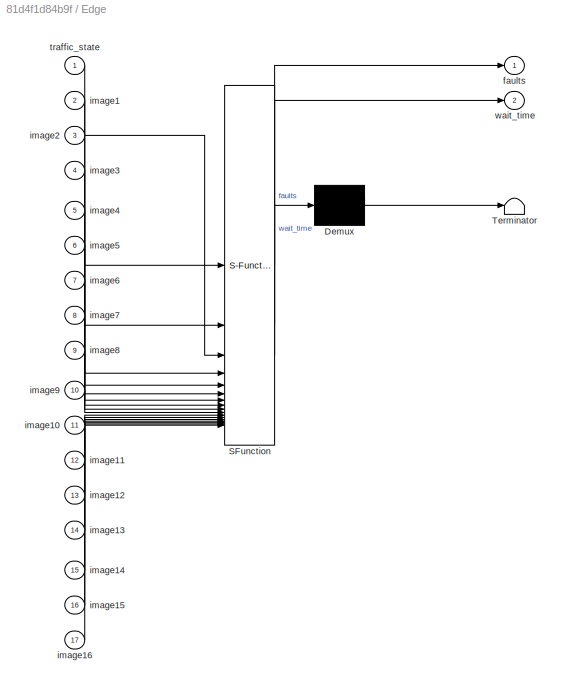
BLOCK [SubSystem] Edge
  ErrorFcn = Stateflow.Translate.translate
  PermitHierarchicalResolution = ExplicitOnly
  SFBlockType = Chart
  TreatAsAtomicUnit = on
BLOCK [Demux] Edge/ Demux 
  Outputs = 1
BLOCK [S-Function] Edge/ SFunction 
  EnableBusSupport = on
  FunctionName = sf_sfun
  InputPortMessageModes = n,m,m,m,m,m,m,m,m,m,m,m,m,m,m,m,m
  PortCounts = [17 3]
  SFcnIsStateOwnerBlock = off
  SFunctionDeploymentMode = off
  Tag = Stateflow S-Function 4
BLOCK [Terminator] Edge/ Terminator 
BLOCK [Outport] Edge/faults
BLOCK [Inport] Edge/image1
  Port = 2
BLOCK [Inport] Edge/image10
  Port = 11
BLOCK [Inport] Edge/image11
  Port = 12
BLOCK [Inport] Edge/image12
  Port = 13
BLOCK [Inport] Edge/image13
  Port = 14
BLOCK [Inport] Edge/image14
  Port = 15
BLOCK [Inport] Edge/image15
  Port = 16
BLOCK [Inport] Edge/image16
  Port = 17
BLOCK [Inport] Edge/image2
  Port = 3
BLOCK [Inport] Edge/image3
  Port = 4
BLOCK [Inport] Edge/image4
  Port = 5
BLOCK [Inport] Edge/image5
  Port = 6
BLOCK [Inport] Edge/image6
  Port = 7
BLOCK [Inport] Edge/image7
  Port = 8
BLOCK [Inport] Edge/image8
  Port = 9
BLOCK [Inport] Edge/image9
  Port = 10
BLOCK [Inport] Edge/traffic_state
BLOCK [Outport] Edge/wait_time
  Port = 2
BLOCK [FromWorkspace] From Workspace
  Interpolate = off
  OutDataTypeStr = double
  OutputAfterFinalValue = Holding final value
  SampleTime = -1
  VariableName = arrive_time
  ZeroCross = off
BLOCK [FromWorkspace] From Workspace1
  Interpolate = off
  OutDataTypeStr = double
  OutputAfterFinalValue = Holding final value
  SampleTime = -1
  VariableName = visibility_time
  ZeroCross = off
BLOCK [FromWorkspace] From Workspace10
  VariableName = timer_array_3
BLOCK [FromWorkspace] From Workspace11
  VariableName = blurryness_array_4
BLOCK [FromWorkspace] From Workspace12
  VariableName = networkloss_array_4
BLOCK [FromWorkspace] From Workspace13
  VariableName = timer_array_4
BLOCK [FromWorkspace] From Workspace14
  VariableName = timer_array_7
BLOCK [FromWorkspace] From Workspace15
  VariableName = blurryness_array_8
BLOCK [FromWorkspace] From Workspace16
  VariableName = networkloss_array_8
BLOCK [FromWorkspace] From Workspace17
  VariableName = timer_array_8
BLOCK [FromWorkspace] From Workspace18
  VariableName = blurryness_array_5
BLOCK [FromWorkspace] From Workspace19
  VariableName = networkloss_array_5
BLOCK [FromWorkspace] From Workspace2
  VariableName = blurryness_array_1
BLOCK [FromWorkspace] From Workspace20
  VariableName = timer_array_5
BLOCK [FromWorkspace] From Workspace21
  VariableName = blurryness_array_6
BLOCK [FromWorkspace] From Workspace22
  VariableName = networkloss_array_6
BLOCK [FromWorkspace] From Workspace23
  VariableName = timer_array_6
BLOCK [FromWorkspace] From Workspace24
  VariableName = blurryness_array_7
BLOCK [FromWorkspace] From Workspace25
  VariableName = networkloss_array_7
BLOCK [FromWorkspace] From Workspace26
  VariableName = timer_array_11
BLOCK [FromWorkspace] From Workspace27
  VariableName = blurryness_array_12
BLOCK [FromWorkspace] From Workspace28
  VariableName = networkloss_array_12
BLOCK [FromWorkspace] From Workspace29
  VariableName = timer_array_12
BLOCK [FromWorkspace] From Workspace3
  VariableName = networkloss_array_1
BLOCK [FromWorkspace] From Workspace30
  VariableName = timer_array_15
BLOCK [FromWorkspace] From Workspace31
  VariableName = blurryness_array_16
BLOCK [FromWorkspace] From Workspace32
  VariableName = networkloss_array_16
BLOCK [FromWorkspace] From Workspace33
  VariableName = timer_array_16
BLOCK [FromWorkspace] From Workspace34
  VariableName = blurryness_array_13
BLOCK [FromWorkspace] From Workspace35
  VariableName = networkloss_array_13
BLOCK [FromWorkspace] From Workspace36
  VariableName = blurryness_array_9
BLOCK [FromWorkspace] From Workspace37
  VariableName = timer_array_13
BLOCK [FromWorkspace] From Workspace38
  VariableName = blurryness_array_14
BLOCK [FromWorkspace] From Workspace39
  VariableName = networkloss_array_14
BLOCK [FromWorkspace] From Workspace4
  VariableName = timer_array_1
BLOCK [FromWorkspace] From Workspace40
  VariableName = timer_array_14
BLOCK [FromWorkspace] From Workspace41
  VariableName = blurryness_array_15
BLOCK [FromWorkspace] From Workspace42
  VariableName = networkloss_array_15
BLOCK [FromWorkspace] From Workspace43
  VariableName = networkloss_array_9
BLOCK [FromWorkspace] From Workspace44
  VariableName = timer_array_9
BLOCK [FromWorkspace] From Workspace45
  VariableName = blurryness_array_10
BLOCK [FromWorkspace] From Workspace46
  VariableName = networkloss_array_10
BLOCK [FromWorkspace] From Workspace47
  VariableName = timer_array_10
BLOCK [FromWorkspace] From Workspace48
  VariableName = blurryness_array_11
BLOCK [FromWorkspace] From Workspace49
  VariableName = networkloss_array_11
BLOCK [FromWorkspace] From Workspace5
  VariableName = blurryness_array_2
BLOCK [FromWorkspace] From Workspace6
  VariableName = networkloss_array_2
BLOCK [FromWorkspace] From Workspace7
  VariableName = timer_array_2
BLOCK [FromWorkspace] From Workspace8
  VariableName = blurryness_array_3
BLOCK [FromWorkspace] From Workspace9
  VariableName = networkloss_array_3
BLOCK [Scope] Scope
  Floating = off
  NumInputPorts = 1
  ScopeSpecificationString = Simulink.scopes.TimeScopeBlockCfg('CurrentConfiguration', extmgr.ConfigurationSet(extmgr.Configuration('Core','General UI',true),extmgr.Configuration('Core','Source UI',true),extmgr.Configuration('Sources','WiredSimulink',true),extmgr.Configuration('Visuals','Time Domain',true,'SerializedDisplays',{struct('MinYLimReal','-1.00000','MaxYLimReal','1.00000','YLabelReal','','MinYLimMag','0.00000','MaxY...<+1714ch>
BLOCK [Scope] Scope1
  Floating = off
  NumInputPorts = 1
  ScopeSpecificationString = Simulink.scopes.TimeScopeBlockCfg('CurrentConfiguration', extmgr.ConfigurationSet(extmgr.Configuration('Core','General UI',true),extmgr.Configuration('Core','Source UI',true),extmgr.Configuration('Sources','WiredSimulink',true,'DataLoggingVariableName','ScopeData1'),extmgr.Configuration('Visuals','Time Domain',true,'SerializedDisplays',{struct('MinYLimReal','-66.51186','MaxYLimReal','598.6067','YL...<+1761ch>
BLOCK [Scope] Scope2
  Floating = off
  NumInputPorts = 1
  ScopeSpecificationString = Simulink.scopes.TimeScopeBlockCfg('CurrentConfiguration', extmgr.ConfigurationSet(extmgr.Configuration('Core','General UI',true),extmgr.Configuration('Core','Source UI',true),extmgr.Configuration('Sources','WiredSimulink',true,'DataLoggingVariableName','ScopeData2'),extmgr.Configuration('Visuals','Time Domain',true,'SerializedDisplays',{struct('MinYLimReal','-0.125','MaxYLimReal','1.125','YLabelRe...<+1750ch>
BLOCK [Scope] Scope3
  Floating = off
  NumInputPorts = 1
  ScopeSpecificationString = Simulink.scopes.TimeScopeBlockCfg('CurrentConfiguration', extmgr.ConfigurationSet(extmgr.Configuration('Core','General UI',true),extmgr.Configuration('Core','Source UI',true),extmgr.Configuration('Sources','WiredSimulink',true,'DataLoggingVariableName','ScopeData3'),extmgr.Configuration('Visuals','Time Domain',true,'SerializedDisplays',{struct('MinYLimReal','0.25','MaxYLimReal','17.75','YLabelReal...<+1737ch>
BLOCK [Scope] Scope4
  Floating = off
  NumInputPorts = 1
  ScopeSpecificationString = Simulink.scopes.TimeScopeBlockCfg('CurrentConfiguration', extmgr.ConfigurationSet(extmgr.Configuration('Core','General UI',true),extmgr.Configuration('Core','Source UI',true),extmgr.Configuration('Sources','WiredSimulink',true,'DataLoggingVariableName','ScopeData1'),extmgr.Configuration('Visuals','Time Domain',true,'SerializedDisplays',{struct('MinYLimReal','0.25','MaxYLimReal','17.75','YLabelReal...<+1737ch>
BLOCK [Scope] Scope5
  Floating = off
  NumInputPorts = 1
  ScopeSpecificationString = Simulink.scopes.TimeScopeBlockCfg('CurrentConfiguration', extmgr.ConfigurationSet(extmgr.Configuration('Core','General UI',true),extmgr.Configuration('Core','Source UI',true),extmgr.Configuration('Sources','WiredSimulink',true,'DataLoggingVariableName','ScopeData1'),extmgr.Configuration('Visuals','Time Domain',true,'SerializedDisplays',{struct('MinYLimReal','0.25','MaxYLimReal','17.75','YLabelReal...<+1737ch>
BLOCK [Scope] Scope6
  Floating = off
  NumInputPorts = 1
  ScopeSpecificationString = Simulink.scopes.TimeScopeBlockCfg('CurrentConfiguration', extmgr.ConfigurationSet(extmgr.Configuration('Core','General UI',true),extmgr.Configuration('Core','Source UI',true),extmgr.Configuration('Sources','WiredSimulink',true,'DataLoggingVariableName','ScopeData2'),extmgr.Configuration('Visuals','Time Domain',true,'SerializedDisplays',{struct('MinYLimReal','0.25','MaxYLimReal','17.75','YLabelReal...<+1737ch>
BLOCK [ToWorkspace] To Workspace
  FixptAsFi = on
  MaxDataPoints = inf
  SampleTime = -1
  SaveFormat = Timeseries
  VariableName = faults
BLOCK [SubSystem] Traffic
  ErrorFcn = Stateflow.Translate.translate
  PermitHierarchicalResolution = ExplicitOnly
  SFBlockType = Chart
  TreatAsAtomicUnit = on
BLOCK [Demux] Traffic/ Demux 
  Outputs = 1
BLOCK [S-Function] Traffic/ SFunction 
  EnableBusSupport = on
  FunctionName = sf_sfun
  PortCounts = [2 2]
  SFcnIsStateOwnerBlock = off
  SFunctionDeploymentMode = off
  Tag = Stateflow S-Function 3
BLOCK [Terminator] Traffic/ Terminator 
BLOCK [Inport] Traffic/arrive_time
BLOCK [Outport] Traffic/traffic_state
BLOCK [Inport] Traffic/visibility_time
  Port = 2
LINE CameraControl10:1 -> CameraDriver10:1
LINE CameraControl10:2 -> Edge:12
LINE CameraControl11:1 -> CameraDriver11:1
LINE CameraControl11:2 -> Edge:13
LINE CameraControl12:1 -> CameraDriver12:1
LINE CameraControl12:2 -> Edge:14
LINE CameraControl13:1 -> CameraDriver13:1
LINE CameraControl13:2 -> Edge:15
LINE CameraControl14:1 -> CameraDriver14:1
LINE CameraControl14:2 -> Edge:16
LINE CameraControl15:1 -> CameraDriver15:1
LINE CameraControl15:2 -> Edge:17
LINE CameraControl1:1 -> CameraDriver1:1
LINE CameraControl1:2 -> Edge:3
LINE CameraControl2:1 -> CameraDriver2:1
LINE CameraControl2:2 -> Edge:4
LINE CameraControl3:1 -> CameraDriver3:1
LINE CameraControl3:2 -> Edge:5
LINE CameraControl4:1 -> CameraDriver4:1
LINE CameraControl4:2 -> Edge:6
LINE CameraControl5:1 -> CameraDriver5:1
LINE CameraControl5:2 -> Edge:7
LINE CameraControl6:1 -> CameraDriver6:1
LINE CameraControl6:2 -> Edge:8
LINE CameraControl7:1 -> CameraDriver7:1
LINE CameraControl7:2 -> Edge:9
LINE CameraControl8:1 -> CameraDriver8:1
LINE CameraControl8:2 -> Edge:10
LINE CameraControl9:1 -> CameraDriver9:1
LINE CameraControl9:2 -> Edge:11
LINE CameraControl:1 -> CameraDriver:1
LINE CameraControl:2 -> Edge:2
LINE CameraDriver10:1 -> CameraControl10:1
LINE CameraDriver11:1 -> CameraControl11:1
LINE CameraDriver12:1 -> CameraControl12:1
LINE CameraDriver13:1 -> CameraControl13:1
LINE CameraDriver14:1 -> CameraControl14:1
LINE CameraDriver15:1 -> CameraControl15:1
LINE CameraDriver1:1 -> CameraControl1:1
LINE CameraDriver2:1 -> CameraControl2:1
LINE CameraDriver3:1 -> CameraControl3:1
LINE CameraDriver4:1 -> CameraControl4:1
LINE CameraDriver5:1 -> CameraControl5:1
LINE CameraDriver6:1 -> CameraControl6:1
LINE CameraDriver7:1 -> CameraControl7:1
LINE CameraDriver8:1 -> CameraControl8:1
LINE CameraDriver9:1 -> CameraControl9:1
LINE CameraDriver:1 -> CameraControl:1
LINE CameraScheduler10:1 -> CameraDriver10:4
LINE CameraScheduler10:2 -> CameraControl10:3
LINE CameraScheduler11:1 -> CameraDriver11:4
LINE CameraScheduler11:2 -> CameraControl11:3
LINE CameraScheduler12:1 -> CameraDriver12:4
LINE CameraScheduler12:2 -> CameraControl12:3
LINE CameraScheduler13:1 -> CameraDriver13:4
LINE CameraScheduler13:2 -> CameraControl13:3
LINE CameraScheduler14:1 -> CameraDriver14:4
LINE CameraScheduler14:2 -> CameraControl14:3
LINE CameraScheduler15:1 -> CameraDriver15:4
LINE CameraScheduler15:2 -> CameraControl15:3
LINE CameraScheduler1:1 -> CameraDriver1:4
LINE CameraScheduler1:2 -> CameraControl1:3
LINE CameraScheduler2:1 -> CameraDriver2:4
LINE CameraScheduler2:2 -> CameraControl2:3
LINE CameraScheduler2:3 -> Scope4:1
LINE CameraScheduler3:1 -> CameraDriver3:4
LINE CameraScheduler3:2 -> CameraControl3:3
LINE CameraScheduler4:1 -> CameraDriver4:4
LINE CameraScheduler4:2 -> CameraControl4:3
LINE CameraScheduler4:3 -> Scope5:1
LINE CameraScheduler5:1 -> CameraDriver5:4
LINE CameraScheduler5:2 -> CameraControl5:3
LINE CameraScheduler6:1 -> CameraDriver6:4
LINE CameraScheduler6:2 -> CameraControl6:3
LINE CameraScheduler6:3 -> Scope6:1
LINE CameraScheduler7:1 -> CameraDriver7:4
LINE CameraScheduler7:2 -> CameraControl7:3
LINE CameraScheduler8:1 -> CameraDriver8:4
LINE CameraScheduler8:2 -> CameraControl8:3
LINE CameraScheduler9:1 -> CameraDriver9:4
LINE CameraScheduler9:2 -> CameraControl9:3
LINE CameraScheduler:1 -> CameraDriver:4
LINE CameraScheduler:2 -> CameraControl:3
LINE CameraScheduler:3 -> Scope3:1
NET Edge:1 -> Scope:1, To Workspace:1
LINE Edge:2 -> Scope1:1
LINE From Workspace10:1 -> CameraScheduler2:1
LINE From Workspace11:1 -> CameraDriver3:3
LINE From Workspace12:1 -> CameraControl3:2
LINE From Workspace13:1 -> CameraScheduler3:1
LINE From Workspace14:1 -> CameraScheduler6:1
LINE From Workspace15:1 -> CameraDriver7:3
LINE From Workspace16:1 -> CameraControl7:2
LINE From Workspace17:1 -> CameraScheduler7:1
LINE From Workspace18:1 -> CameraDriver4:3
LINE From Workspace19:1 -> CameraControl4:2
LINE From Workspace1:1 -> Traffic:2
LINE From Workspace20:1 -> CameraScheduler4:1
LINE From Workspace21:1 -> CameraDriver5:3
LINE From Workspace22:1 -> CameraControl5:2
LINE From Workspace23:1 -> CameraScheduler5:1
LINE From Workspace24:1 -> CameraDriver6:3
LINE From Workspace25:1 -> CameraControl6:2
LINE From Workspace26:1 -> CameraScheduler10:1
LINE From Workspace27:1 -> CameraDriver11:3
LINE From Workspace28:1 -> CameraControl11:2
LINE From Workspace29:1 -> CameraScheduler11:1
LINE From Workspace2:1 -> CameraDriver:3
LINE From Workspace30:1 -> CameraScheduler14:1
LINE From Workspace31:1 -> CameraDriver15:3
LINE From Workspace32:1 -> CameraControl15:2
LINE From Workspace33:1 -> CameraScheduler15:1
LINE From Workspace34:1 -> CameraDriver12:3
LINE From Workspace35:1 -> CameraControl12:2
LINE From Workspace36:1 -> CameraDriver8:3
LINE From Workspace37:1 -> CameraScheduler12:1
LINE From Workspace38:1 -> CameraDriver13:3
LINE From Workspace39:1 -> CameraControl13:2
LINE From Workspace3:1 -> CameraControl:2
LINE From Workspace40:1 -> CameraScheduler13:1
LINE From Workspace41:1 -> CameraDriver14:3
LINE From Workspace42:1 -> CameraControl14:2
LINE From Workspace43:1 -> CameraControl8:2
LINE From Workspace44:1 -> CameraScheduler8:1
LINE From Workspace45:1 -> CameraDriver9:3
LINE From Workspace46:1 -> CameraControl9:2
LINE From Workspace47:1 -> CameraScheduler9:1
LINE From Workspace48:1 -> CameraDriver10:3
LINE From Workspace49:1 -> CameraControl10:2
LINE From Workspace4:1 -> CameraScheduler:1
LINE From Workspace5:1 -> CameraDriver1:3
LINE From Workspace6:1 -> CameraControl1:2
LINE From Workspace7:1 -> CameraScheduler1:1
LINE From Workspace8:1 -> CameraDriver2:3
LINE From Workspace9:1 -> CameraControl2:2
LINE From Workspace:1 -> Traffic:1
NET Traffic:1 -> CameraDriver10:2, CameraDriver11:2, CameraDriver12:2, CameraDriver13:2, CameraDriver14:2, CameraDriver15:2, CameraDriver1:2, CameraDriver2:2, CameraDriver3:2, CameraDriver4:2, CameraDriver5:2, CameraDriver6:2, CameraDriver7:2, CameraDriver8:2, CameraDriver9:2, CameraDriver:2, Edge:1, Scope2:1
note: NET lines group one-source signal fan-out (src -> all destinations, sorted); 1:1 wires keep LINE
CHART CameraDriver13 states=6 transitions=7
  STATE_LABEL 'Operation'
  STATE_LABEL 'CarVisibility'
  STATE_LABEL 'NoCar\nentry: car=0;'
  STATE_LABEL 'Car\nentry: car=1;'
  STATE_LABEL '[traffic_state==1]'
  STATE_LABEL '[traffic_state==0]'
  STATE_LABEL 'DriverOperation'
  STATE_LABEL 'Main'
  STATE_LABEL '{i=1;}'
  STATE_LABEL 'schedule\n[image_request]'
  STATE_LABEL '[(car==1)&&(blurryness(i)==1)]\n{image.data=1;send(image);i = i + 1;}'
  STATE_LABEL '{image.data=0;\nsend(image);i = i + 1;}'
  STATE_LABEL 'CarVisibility'
  STATE_LABEL 'NoCar\nentry: car=0;'
  STATE_LABEL 'Car\nentry: car=1;'
  STATE_LABEL '[traffic_state==1]'
  STATE_LABEL '[traffic_state==0]'
  STATE_LABEL 'NoCar\nentry: car=0;'
  STATE_LABEL 'Car\nentry: car=1;'
  STATE_LABEL 'DriverOperation'
  STATE_LABEL 'Main'
  STATE_LABEL '{i=1;}'
  STATE_LABEL 'schedule\n[image_request]'
  STATE_LABEL '[(car==1)&&(blurryness(i)==1)]\n{image.data=1;send(image);i = i + 1;}'
  STATE_LABEL '{image.data=0;\nsend(image);i = i + 1;}'
  STATE_LABEL 'Main'
CHART CameraDriver14 states=6 transitions=7
  STATE_LABEL 'Operation'
  STATE_LABEL 'CarVisibility'
  STATE_LABEL 'NoCar\nentry: car=0;'
  STATE_LABEL 'Car\nentry: car=1;'
  STATE_LABEL '[traffic_state==1]'
  STATE_LABEL '[traffic_state==0]'
  STATE_LABEL 'DriverOperation'
  STATE_LABEL 'Main'
  STATE_LABEL '{i=1;}'
  STATE_LABEL 'schedule[image_request]'
  STATE_LABEL '{image.data=0;\nsend(image);i = i + 1;}'
  STATE_LABEL '[(car==1)&&(blurryness(i)==1)]\n{image.data=1;i = i + 1;send(image);}'
  STATE_LABEL 'CarVisibility'
  STATE_LABEL 'NoCar\nentry: car=0;'
  STATE_LABEL 'Car\nentry: car=1;'
  STATE_LABEL '[traffic_state==1]'
  STATE_LABEL '[traffic_state==0]'
  STATE_LABEL 'NoCar\nentry: car=0;'
  STATE_LABEL 'Car\nentry: car=1;'
  STATE_LABEL 'DriverOperation'
  STATE_LABEL 'Main'
  STATE_LABEL '{i=1;}'
  STATE_LABEL 'schedule[image_request]'
  STATE_LABEL '{image.data=0;\nsend(image);i = i + 1;}'
  STATE_LABEL '[(car==1)&&(blurryness(i)==1)]\n{image.data=1;i = i + 1;send(image);}'
  STATE_LABEL 'Main'
CHART CameraDriver15 states=6 transitions=7
  STATE_LABEL 'Operation'
  STATE_LABEL 'CarVisibility'
  STATE_LABEL 'NoCar\nentry: car=0;'
  STATE_LABEL 'Car\nentry: car=1;'
  STATE_LABEL '[traffic_state==1]'
  STATE_LABEL '[traffic_state==0]'
  STATE_LABEL 'DriverOperation'
  STATE_LABEL 'Main'
  STATE_LABEL '{i=1;}'
  STATE_LABEL 'schedule\n[image_request]'
  STATE_LABEL '[(car==1)&&(blurryness(i)==1)]\n{image.data=1;send(image);i = i + 1;}'
  STATE_LABEL '{image.data=0;\nsend(image);i = i + 1;}'
  STATE_LABEL 'CarVisibility'
  STATE_LABEL 'NoCar\nentry: car=0;'
  STATE_LABEL 'Car\nentry: car=1;'
  STATE_LABEL '[traffic_state==1]'
  STATE_LABEL '[traffic_state==0]'
  STATE_LABEL 'NoCar\nentry: car=0;'
  STATE_LABEL 'Car\nentry: car=1;'
  STATE_LABEL 'DriverOperation'
  STATE_LABEL 'Main'
  STATE_LABEL '{i=1;}'
  STATE_LABEL 'schedule\n[image_request]'
  STATE_LABEL '[(car==1)&&(blurryness(i)==1)]\n{image.data=1;send(image);i = i + 1;}'
  STATE_LABEL '{image.data=0;\nsend(image);i = i + 1;}'
  STATE_LABEL 'Main'
CHART CameraDriver8 states=6 transitions=7
  STATE_LABEL 'Operation'
  STATE_LABEL 'CarVisibility'
  STATE_LABEL 'NoCar\nentry: car=0;'
  STATE_LABEL 'Car\nentry: car=1;'
  STATE_LABEL '[traffic_state==1]'
  STATE_LABEL '[traffic_state==0]'
  STATE_LABEL 'DriverOperation'
  STATE_LABEL 'Main'
  STATE_LABEL '{i=1;}'
  STATE_LABEL 'schedule[image_request]'
  STATE_LABEL '{image.data=0;\nsend(image);i = i + 1;}'
  STATE_LABEL '[(car==1)&&(blurryness(i)==1)]\n{image.data=1;i = i + 1;send(image);}'
  STATE_LABEL 'CarVisibility'
  STATE_LABEL 'NoCar\nentry: car=0;'
  STATE_LABEL 'Car\nentry: car=1;'
  STATE_LABEL '[traffic_state==1]'
  STATE_LABEL '[traffic_state==0]'
  STATE_LABEL 'NoCar\nentry: car=0;'
  STATE_LABEL 'Car\nentry: car=1;'
  STATE_LABEL 'DriverOperation'
  STATE_LABEL 'Main'
  STATE_LABEL '{i=1;}'
  STATE_LABEL 'schedule[image_request]'
  STATE_LABEL '{image.data=0;\nsend(image);i = i + 1;}'
  STATE_LABEL '[(car==1)&&(blurryness(i)==1)]\n{image.data=1;i = i + 1;send(image);}'
  STATE_LABEL 'Main'
CHART CameraDriver9 states=6 transitions=7
  STATE_LABEL 'Operation'
  STATE_LABEL 'CarVisibility'
  STATE_LABEL 'NoCar\nentry: car=0;'
  STATE_LABEL 'Car\nentry: car=1;'
  STATE_LABEL '[traffic_state==1]'
  STATE_LABEL '[traffic_state==0]'
  STATE_LABEL 'DriverOperation'
  STATE_LABEL 'Main'
  STATE_LABEL '{i=1;}'
  STATE_LABEL 'schedule\n[image_request]'
  STATE_LABEL '[(car==1)&&(blurryness(i)==1)]\n{image.data=1;send(image);i = i + 1;}'
  STATE_LABEL '{image.data=0;\nsend(image);i = i + 1;}'
  STATE_LABEL 'CarVisibility'
  STATE_LABEL 'NoCar\nentry: car=0;'
  STATE_LABEL 'Car\nentry: car=1;'
  STATE_LABEL '[traffic_state==1]'
  STATE_LABEL '[traffic_state==0]'
  STATE_LABEL 'NoCar\nentry: car=0;'
  STATE_LABEL 'Car\nentry: car=1;'
  STATE_LABEL 'DriverOperation'
  STATE_LABEL 'Main'
  STATE_LABEL '{i=1;}'
  STATE_LABEL 'schedule\n[image_request]'
  STATE_LABEL '[(car==1)&&(blurryness(i)==1)]\n{image.data=1;send(image);i = i + 1;}'
  STATE_LABEL '{image.data=0;\nsend(image);i = i + 1;}'
  STATE_LABEL 'Main'
CHART CameraScheduler10 states=1 transitions=2
  STATE_LABEL 'Main\nentry:\ndt=timer_array[i];'
CHART CameraScheduler11 states=1 transitions=2
  STATE_LABEL 'Main\nentry:\ndt=timer_array[i];'
CHART CameraScheduler12 states=1 transitions=2
  STATE_LABEL 'Main\nentry:\ndt=timer_array[i];'
CHART CameraScheduler13 states=1 transitions=2
  STATE_LABEL 'Main\nentry:\ndt=timer_array[i];'
CHART CameraScheduler14 states=1 transitions=2
  STATE_LABEL 'Main\nentry:\ndt=timer_array[i];'
CHART CameraScheduler15 states=1 transitions=2
  STATE_LABEL 'Main\nentry:\ndt=timer_array[i];'
CHART CameraScheduler8 states=1 transitions=2
  STATE_LABEL 'Main\nentry:\ndt=timer_array[i];'
CHART CameraScheduler9 states=1 transitions=2
  STATE_LABEL 'Main\nentry:\ndt=timer_array[i];'
CHART CameraDriver states=6 transitions=7
  STATE_LABEL 'Operation'
  STATE_LABEL 'CarVisibility'
  STATE_LABEL 'NoCar\nentry: car=0;'
  STATE_LABEL 'Car\nentry: car=1;'
  STATE_LABEL '[traffic_state==1]'
  STATE_LABEL '[traffic_state==0]'
  STATE_LABEL 'DriverOperation'
  STATE_LABEL 'Main'
  STATE_LABEL '{i=1;}'
  STATE_LABEL 'schedule[image_request]'
  STATE_LABEL '{image.data=0;\nsend(image);i = i + 1;}'
  STATE_LABEL '[(car==1)&&(blurryness(i)==1)]\n{image.data=1;i = i + 1;send(image);}'
  STATE_LABEL 'CarVisibility'
  STATE_LABEL 'NoCar\nentry: car=0;'
  STATE_LABEL 'Car\nentry: car=1;'
  STATE_LABEL '[traffic_state==1]'
  STATE_LABEL '[traffic_state==0]'
  STATE_LABEL 'NoCar\nentry: car=0;'
  STATE_LABEL 'Car\nentry: car=1;'
  STATE_LABEL 'DriverOperation'
  STATE_LABEL 'Main'
  STATE_LABEL '{i=1;}'
  STATE_LABEL 'schedule[image_request]'
  STATE_LABEL '{image.data=0;\nsend(image);i = i + 1;}'
  STATE_LABEL '[(car==1)&&(blurryness(i)==1)]\n{image.data=1;i = i + 1;send(image);}'
  STATE_LABEL 'Main'
CHART CameraControl states=5 transitions=9
  STATE_LABEL 'Operation'
  STATE_LABEL 'RequestHangling'
  STATE_LABEL 'Operation1'
  STATE_LABEL '{image_request=1;}'
  STATE_LABEL 'schedule{image_request=1;}'
  STATE_LABEL 'ImageMessaging'
  STATE_LABEL 'Operation2\nentry:\nvalidity=isvalid(imageIn);\n'
  STATE_LABEL '{i=1;}'
  STATE_LABEL '[validity==1]\n{receive(imageIn);i = i + 1;\nimageOut.data=imageIn.data\nsend(imageOut);}'
  STATE_LABEL '{i = i + 1;receive(imageIn);}'
  STATE_LABEL '[network_faults(i)==0]'
  STATE_LABEL '{receive(imageIn);i = i + 1;}'
  STATE_LABEL 'schedule'
  STATE_LABEL 'RequestHangling'
  STATE_LABEL 'Operation1'
  STATE_LABEL '{image_request=1;}'
  STATE_LABEL 'schedule{image_request=1;}'
  STATE_LABEL 'Operation1'
  STATE_LABEL 'ImageMessaging'
  STATE_LABEL 'Operation2\nentry:\nvalidity=isvalid(imageIn);\n'
  STATE_LABEL '{i=1;}'
  STATE_LABEL '[validity==1]\n{receive(imageIn);i = i + 1;\nimageOut.data=imageIn.data\nsend(imageOut);}'
  STATE_LABEL '{i = i + 1;receive(imageIn);}'
  STATE_LABEL '[network_faults(i)==0]'
  STATE_LABEL '{receive(imageIn);i = i + 1;}'
  STATE_LABEL 'schedule'
  STATE_LABEL 'Operation2\nentry:\nvalidity=isvalid(imageIn);\n'
CHART Traffic states=3 transitions=3
  STATE_LABEL 'Nocar\nentry:\ntraffic_state=0;\n'
  STATE_LABEL 'Car\nentry:\ntraffic_state=1;\n'
  STATE_LABEL 'Nocar1\nentry:\ntraffic_state=0;'
CHART Edge states=3 transitions=84
  STATE_LABEL 'Waiting'
  STATE_LABEL 'NotRecognized\nwait_time=elapsed(msec);\n'
  STATE_LABEL 'Recognized'
CHART CameraScheduler states=1 transitions=2
  STATE_LABEL 'Main\nentry:\ndt=timer_array[i];'
CHART CameraControl1 states=6 transitions=9
  STATE_LABEL 'Operation'
  STATE_LABEL 'RequestHangling'
  STATE_LABEL '{image_request=1;}'
  STATE_LABEL 'Operation1'
  STATE_LABEL 'schedule{image_request=1;}'
  STATE_LABEL 'ImageMessaging'
  STATE_LABEL 'Operation2\nentry:\nvalidity=isvalid(imageIn);'
  STATE_LABEL '{i=1;}'
  STATE_LABEL '[isvalid(imageIn)==1]\n{receive(imageIn);i = i + 1;\nimageOut.data=imageIn.data;\nsend(imageOut);}'
  STATE_LABEL '{receive(imageIn);i = i + 1;}'
  STATE_LABEL 'schedule'
  STATE_LABEL '{i = i + 1;receive(imageIn);}'
  STATE_LABEL '[network_faults(i)==0]'
  STATE_LABEL 'RequestHangling'
  STATE_LABEL '{image_request=1;}'
  STATE_LABEL 'Operation1'
  STATE_LABEL 'schedule{image_request=1;}'
  STATE_LABEL '{image_request=1;}'
  STATE_LABEL 'Operation1'
  STATE_LABEL 'ImageMessaging'
  STATE_LABEL 'Operation2\nentry:\nvalidity=isvalid(imageIn);'
  STATE_LABEL '{i=1;}'
  STATE_LABEL '[isvalid(imageIn)==1]\n{receive(imageIn);i = i + 1;\nimageOut.data=imageIn.data;\nsend(imageOut);}'
  STATE_LABEL '{receive(imageIn);i = i + 1;}'
  STATE_LABEL 'schedule'
  STATE_LABEL '{i = i + 1;receive(imageIn);}'
  STATE_LABEL '[network_faults(i)==0]'
  STATE_LABEL 'Operation2\nentry:\nvalidity=isvalid(imageIn);'
CHART CameraDriver1 states=6 transitions=7
  STATE_LABEL 'Operation'
  STATE_LABEL 'CarVisibility'
  STATE_LABEL 'NoCar\nentry: car=0;'
  STATE_LABEL 'Car\nentry: car=1;'
  STATE_LABEL '[traffic_state==1]'
  STATE_LABEL '[traffic_state==0]'
  STATE_LABEL 'DriverOperation'
  STATE_LABEL 'Main'
  STATE_LABEL '{i=1;}'
  STATE_LABEL 'schedule\n[image_request]'
  STATE_LABEL '[(car==1)&&(blurryness(i)==1)]\n{image.data=1;send(image);i = i + 1;}'
  STATE_LABEL '{image.data=0;\nsend(image);i = i + 1;}'
  STATE_LABEL 'CarVisibility'
  STATE_LABEL 'NoCar\nentry: car=0;'
  STATE_LABEL 'Car\nentry: car=1;'
  STATE_LABEL '[traffic_state==1]'
  STATE_LABEL '[traffic_state==0]'
  STATE_LABEL 'NoCar\nentry: car=0;'
  STATE_LABEL 'Car\nentry: car=1;'
  STATE_LABEL 'DriverOperation'
  STATE_LABEL 'Main'
  STATE_LABEL '{i=1;}'
  STATE_LABEL 'schedule\n[image_request]'
  STATE_LABEL '[(car==1)&&(blurryness(i)==1)]\n{image.data=1;send(image);i = i + 1;}'
  STATE_LABEL '{image.data=0;\nsend(image);i = i + 1;}'
  STATE_LABEL 'Main'
CHART CameraScheduler1 states=1 transitions=2
  STATE_LABEL 'Main\nentry:\ndt=timer_array[i];'
CHART CameraControl2 states=5 transitions=9
  STATE_LABEL 'Operation'
  STATE_LABEL 'RequestHangling'
  STATE_LABEL 'Operation1'
  STATE_LABEL '{image_request=1;}'
  STATE_LABEL 'schedule{image_request=1;}'
  STATE_LABEL 'ImageMessaging'
  STATE_LABEL 'Operation2\nentry:\nvalidity=isvalid(imageIn);\n'
  STATE_LABEL '{i=1;}'
  STATE_LABEL '[validity==1]\n{receive(imageIn);i = i + 1;\nimageOut.data=imageIn.data\nsend(imageOut);}'
  STATE_LABEL '{i = i + 1;receive(imageIn);}'
  STATE_LABEL '[network_faults(i)==0]'
  STATE_LABEL '{receive(imageIn);i = i + 1;}'
  STATE_LABEL 'schedule'
  STATE_LABEL 'RequestHangling'
  STATE_LABEL 'Operation1'
  STATE_LABEL '{image_request=1;}'
  STATE_LABEL 'schedule{image_request=1;}'
  STATE_LABEL 'Operation1'
  STATE_LABEL 'ImageMessaging'
  STATE_LABEL 'Operation2\nentry:\nvalidity=isvalid(imageIn);\n'
  STATE_LABEL '{i=1;}'
  STATE_LABEL '[validity==1]\n{receive(imageIn);i = i + 1;\nimageOut.data=imageIn.data\nsend(imageOut);}'
  STATE_LABEL '{i = i + 1;receive(imageIn);}'
  STATE_LABEL '[network_faults(i)==0]'
  STATE_LABEL '{receive(imageIn);i = i + 1;}'
  STATE_LABEL 'schedule'
  STATE_LABEL 'Operation2\nentry:\nvalidity=isvalid(imageIn);\n'
CHART CameraControl3 states=6 transitions=9
  STATE_LABEL 'Operation'
  STATE_LABEL 'RequestHangling'
  STATE_LABEL '{image_request=1;}'
  STATE_LABEL 'Operation1'
  STATE_LABEL 'schedule{image_request=1;}'
  STATE_LABEL 'ImageMessaging'
  STATE_LABEL 'Operation2\nentry:\nvalidity=isvalid(imageIn);'
  STATE_LABEL '{i=1;}'
  STATE_LABEL '[isvalid(imageIn)==1]\n{receive(imageIn);i = i + 1;\nimageOut.data=imageIn.data;\nsend(imageOut);}'
  STATE_LABEL '{receive(imageIn);i = i + 1;}'
  STATE_LABEL 'schedule'
  STATE_LABEL '{i = i + 1;receive(imageIn);}'
  STATE_LABEL '[network_faults(i)==0]'
  STATE_LABEL 'RequestHangling'
  STATE_LABEL '{image_request=1;}'
  STATE_LABEL 'Operation1'
  STATE_LABEL 'schedule{image_request=1;}'
  STATE_LABEL '{image_request=1;}'
  STATE_LABEL 'Operation1'
  STATE_LABEL 'ImageMessaging'
  STATE_LABEL 'Operation2\nentry:\nvalidity=isvalid(imageIn);'
  STATE_LABEL '{i=1;}'
  STATE_LABEL '[isvalid(imageIn)==1]\n{receive(imageIn);i = i + 1;\nimageOut.data=imageIn.data;\nsend(imageOut);}'
  STATE_LABEL '{receive(imageIn);i = i + 1;}'
  STATE_LABEL 'schedule'
  STATE_LABEL '{i = i + 1;receive(imageIn);}'
  STATE_LABEL '[network_faults(i)==0]'
  STATE_LABEL 'Operation2\nentry:\nvalidity=isvalid(imageIn);'
CHART CameraDriver2 states=6 transitions=7
  STATE_LABEL 'Operation'
  STATE_LABEL 'CarVisibility'
  STATE_LABEL 'NoCar\nentry: car=0;'
  STATE_LABEL 'Car\nentry: car=1;'
  STATE_LABEL '[traffic_state==1]'
  STATE_LABEL '[traffic_state==0]'
  STATE_LABEL 'DriverOperation'
  STATE_LABEL 'Main'
  STATE_LABEL '{i=1;}'
  STATE_LABEL 'schedule[image_request]'
  STATE_LABEL '{image.data=0;\nsend(image);i = i + 1;}'
  STATE_LABEL '[(car==1)&&(blurryness(i)==1)]\n{image.data=1;i = i + 1;send(image);}'
  STATE_LABEL 'CarVisibility'
  STATE_LABEL 'NoCar\nentry: car=0;'
  STATE_LABEL 'Car\nentry: car=1;'
  STATE_LABEL '[traffic_state==1]'
  STATE_LABEL '[traffic_state==0]'
  STATE_LABEL 'NoCar\nentry: car=0;'
  STATE_LABEL 'Car\nentry: car=1;'
  STATE_LABEL 'DriverOperation'
  STATE_LABEL 'Main'
  STATE_LABEL '{i=1;}'
  STATE_LABEL 'schedule[image_request]'
  STATE_LABEL '{image.data=0;\nsend(image);i = i + 1;}'
  STATE_LABEL '[(car==1)&&(blurryness(i)==1)]\n{image.data=1;i = i + 1;send(image);}'
  STATE_LABEL 'Main'
CHART CameraDriver3 states=6 transitions=7
  STATE_LABEL 'Operation'
  STATE_LABEL 'CarVisibility'
  STATE_LABEL 'NoCar\nentry: car=0;'
  STATE_LABEL 'Car\nentry: car=1;'
  STATE_LABEL '[traffic_state==1]'
  STATE_LABEL '[traffic_state==0]'
  STATE_LABEL 'DriverOperation'
  STATE_LABEL 'Main'
  STATE_LABEL '{i=1;}'
  STATE_LABEL 'schedule\n[image_request]'
  STATE_LABEL '[(car==1)&&(blurryness(i)==1)]\n{image.data=1;send(image);i = i + 1;}'
  STATE_LABEL '{image.data=0;\nsend(image);i = i + 1;}'
  STATE_LABEL 'CarVisibility'
  STATE_LABEL 'NoCar\nentry: car=0;'
  STATE_LABEL 'Car\nentry: car=1;'
  STATE_LABEL '[traffic_state==1]'
  STATE_LABEL '[traffic_state==0]'
  STATE_LABEL 'NoCar\nentry: car=0;'
  STATE_LABEL 'Car\nentry: car=1;'
  STATE_LABEL 'DriverOperation'
  STATE_LABEL 'Main'
  STATE_LABEL '{i=1;}'
  STATE_LABEL 'schedule\n[image_request]'
  STATE_LABEL '[(car==1)&&(blurryness(i)==1)]\n{image.data=1;send(image);i = i + 1;}'
  STATE_LABEL '{image.data=0;\nsend(image);i = i + 1;}'
  STATE_LABEL 'Main'
CHART CameraScheduler2 states=1 transitions=2
  STATE_LABEL 'Main\nentry:\ndt=timer_array[i];'
CHART CameraScheduler3 states=1 transitions=2
  STATE_LABEL 'Main\nentry:\ndt=timer_array[i];'
CHART CameraControl4 states=5 transitions=9
  STATE_LABEL 'Operation'
  STATE_LABEL 'RequestHangling'
  STATE_LABEL 'Operation1'
  STATE_LABEL '{image_request=1;}'
  STATE_LABEL 'schedule{image_request=1;}'
  STATE_LABEL 'ImageMessaging'
  STATE_LABEL 'Operation2\nentry:\nvalidity=isvalid(imageIn);\n'
  STATE_LABEL '{i=1;}'
  STATE_LABEL '[validity==1]\n{receive(imageIn);i = i + 1;\nimageOut.data=imageIn.data\nsend(imageOut);}'
  STATE_LABEL '{i = i + 1;receive(imageIn);}'
  STATE_LABEL '[network_faults(i)==0]'
  STATE_LABEL '{receive(imageIn);i = i + 1;}'
  STATE_LABEL 'schedule'
  STATE_LABEL 'RequestHangling'
  STATE_LABEL 'Operation1'
  STATE_LABEL '{image_request=1;}'
  STATE_LABEL 'schedule{image_request=1;}'
  STATE_LABEL 'Operation1'
  STATE_LABEL 'ImageMessaging'
  STATE_LABEL 'Operation2\nentry:\nvalidity=isvalid(imageIn);\n'
  STATE_LABEL '{i=1;}'
  STATE_LABEL '[validity==1]\n{receive(imageIn);i = i + 1;\nimageOut.data=imageIn.data\nsend(imageOut);}'
  STATE_LABEL '{i = i + 1;receive(imageIn);}'
  STATE_LABEL '[network_faults(i)==0]'
  STATE_LABEL '{receive(imageIn);i = i + 1;}'
  STATE_LABEL 'schedule'
  STATE_LABEL 'Operation2\nentry:\nvalidity=isvalid(imageIn);\n'
CHART CameraControl5 states=6 transitions=9
  STATE_LABEL 'Operation'
  STATE_LABEL 'RequestHangling'
  STATE_LABEL '{image_request=1;}'
  STATE_LABEL 'Operation1'
  STATE_LABEL 'schedule{image_request=1;}'
  STATE_LABEL 'ImageMessaging'
  STATE_LABEL 'Operation2\nentry:\nvalidity=isvalid(imageIn);'
  STATE_LABEL '{i=1;}'
  STATE_LABEL '[isvalid(imageIn)==1]\n{receive(imageIn);i = i + 1;\nimageOut.data=imageIn.data;\nsend(imageOut);}'
  STATE_LABEL '{receive(imageIn);i = i + 1;}'
  STATE_LABEL 'schedule'
  STATE_LABEL '{i = i + 1;receive(imageIn);}'
  STATE_LABEL '[network_faults(i)==0]'
  STATE_LABEL 'RequestHangling'
  STATE_LABEL '{image_request=1;}'
  STATE_LABEL 'Operation1'
  STATE_LABEL 'schedule{image_request=1;}'
  STATE_LABEL '{image_request=1;}'
  STATE_LABEL 'Operation1'
  STATE_LABEL 'ImageMessaging'
  STATE_LABEL 'Operation2\nentry:\nvalidity=isvalid(imageIn);'
  STATE_LABEL '{i=1;}'
  STATE_LABEL '[isvalid(imageIn)==1]\n{receive(imageIn);i = i + 1;\nimageOut.data=imageIn.data;\nsend(imageOut);}'
  STATE_LABEL '{receive(imageIn);i = i + 1;}'
  STATE_LABEL 'schedule'
  STATE_LABEL '{i = i + 1;receive(imageIn);}'
  STATE_LABEL '[network_faults(i)==0]'
  STATE_LABEL 'Operation2\nentry:\nvalidity=isvalid(imageIn);'
CHART CameraControl6 states=5 transitions=9
  STATE_LABEL 'Operation'
  STATE_LABEL 'RequestHangling'
  STATE_LABEL 'Operation1'
  STATE_LABEL '{image_request=1;}'
  STATE_LABEL 'schedule{image_request=1;}'
  STATE_LABEL 'ImageMessaging'
  STATE_LABEL 'Operation2\nentry:\nvalidity=isvalid(imageIn);\n'
  STATE_LABEL '{i=1;}'
  STATE_LABEL '[validity==1]\n{receive(imageIn);i = i + 1;\nimageOut.data=imageIn.data\nsend(imageOut);}'
  STATE_LABEL '{i = i + 1;receive(imageIn);}'
  STATE_LABEL '[network_faults(i)==0]'
  STATE_LABEL '{receive(imageIn);i = i + 1;}'
  STATE_LABEL 'schedule'
  STATE_LABEL 'RequestHangling'
  STATE_LABEL 'Operation1'
  STATE_LABEL '{image_request=1;}'
  STATE_LABEL 'schedule{image_request=1;}'
  STATE_LABEL 'Operation1'
  STATE_LABEL 'ImageMessaging'
  STATE_LABEL 'Operation2\nentry:\nvalidity=isvalid(imageIn);\n'
  STATE_LABEL '{i=1;}'
  STATE_LABEL '[validity==1]\n{receive(imageIn);i = i + 1;\nimageOut.data=imageIn.data\nsend(imageOut);}'
  STATE_LABEL '{i = i + 1;receive(imageIn);}'
  STATE_LABEL '[network_faults(i)==0]'
  STATE_LABEL '{receive(imageIn);i = i + 1;}'
  STATE_LABEL 'schedule'
  STATE_LABEL 'Operation2\nentry:\nvalidity=isvalid(imageIn);\n'
CHART CameraControl7 states=6 transitions=9
  STATE_LABEL 'Operation'
  STATE_LABEL 'RequestHangling'
  STATE_LABEL '{image_request=1;}'
  STATE_LABEL 'Operation1'
  STATE_LABEL 'schedule{image_request=1;}'
  STATE_LABEL 'ImageMessaging'
  STATE_LABEL 'Operation2\nentry:\nvalidity=isvalid(imageIn);'
  STATE_LABEL '{i=1;}'
  STATE_LABEL '[isvalid(imageIn)==1]\n{receive(imageIn);i = i + 1;\nimageOut.data=imageIn.data;\nsend(imageOut);}'
  STATE_LABEL '{receive(imageIn);i = i + 1;}'
  STATE_LABEL 'schedule'
  STATE_LABEL '{i = i + 1;receive(imageIn);}'
  STATE_LABEL '[network_faults(i)==0]'
  STATE_LABEL 'RequestHangling'
  STATE_LABEL '{image_request=1;}'
  STATE_LABEL 'Operation1'
  STATE_LABEL 'schedule{image_request=1;}'
  STATE_LABEL '{image_request=1;}'
  STATE_LABEL 'Operation1'
  STATE_LABEL 'ImageMessaging'
  STATE_LABEL 'Operation2\nentry:\nvalidity=isvalid(imageIn);'
  STATE_LABEL '{i=1;}'
  STATE_LABEL '[isvalid(imageIn)==1]\n{receive(imageIn);i = i + 1;\nimageOut.data=imageIn.data;\nsend(imageOut);}'
  STATE_LABEL '{receive(imageIn);i = i + 1;}'
  STATE_LABEL 'schedule'
  STATE_LABEL '{i = i + 1;receive(imageIn);}'
  STATE_LABEL '[network_faults(i)==0]'
  STATE_LABEL 'Operation2\nentry:\nvalidity=isvalid(imageIn);'
CHART CameraDriver4 states=6 transitions=7
  STATE_LABEL 'Operation'
  STATE_LABEL 'CarVisibility'
  STATE_LABEL 'NoCar\nentry: car=0;'
  STATE_LABEL 'Car\nentry: car=1;'
  STATE_LABEL '[traffic_state==1]'
  STATE_LABEL '[traffic_state==0]'
  STATE_LABEL 'DriverOperation'
  STATE_LABEL 'Main'
  STATE_LABEL '{i=1;}'
  STATE_LABEL 'schedule[image_request]'
  STATE_LABEL '{image.data=0;\nsend(image);i = i + 1;}'
  STATE_LABEL '[(car==1)&&(blurryness(i)==1)]\n{image.data=1;i = i + 1;send(image);}'
  STATE_LABEL 'CarVisibility'
  STATE_LABEL 'NoCar\nentry: car=0;'
  STATE_LABEL 'Car\nentry: car=1;'
  STATE_LABEL '[traffic_state==1]'
  STATE_LABEL '[traffic_state==0]'
  STATE_LABEL 'NoCar\nentry: car=0;'
  STATE_LABEL 'Car\nentry: car=1;'
  STATE_LABEL 'DriverOperation'
  STATE_LABEL 'Main'
  STATE_LABEL '{i=1;}'
  STATE_LABEL 'schedule[image_request]'
  STATE_LABEL '{image.data=0;\nsend(image);i = i + 1;}'
  STATE_LABEL '[(car==1)&&(blurryness(i)==1)]\n{image.data=1;i = i + 1;send(image);}'
  STATE_LABEL 'Main'
CHART CameraDriver5 states=6 transitions=7
  STATE_LABEL 'Operation'
  STATE_LABEL 'CarVisibility'
  STATE_LABEL 'NoCar\nentry: car=0;'
  STATE_LABEL 'Car\nentry: car=1;'
  STATE_LABEL '[traffic_state==1]'
  STATE_LABEL '[traffic_state==0]'
  STATE_LABEL 'DriverOperation'
  STATE_LABEL 'Main'
  STATE_LABEL '{i=1;}'
  STATE_LABEL 'schedule\n[image_request]'
  STATE_LABEL '[(car==1)&&(blurryness(i)==1)]\n{image.data=1;send(image);i = i + 1;}'
  STATE_LABEL '{image.data=0;\nsend(image);i = i + 1;}'
  STATE_LABEL 'CarVisibility'
  STATE_LABEL 'NoCar\nentry: car=0;'
  STATE_LABEL 'Car\nentry: car=1;'
  STATE_LABEL '[traffic_state==1]'
  STATE_LABEL '[traffic_state==0]'
  STATE_LABEL 'NoCar\nentry: car=0;'
  STATE_LABEL 'Car\nentry: car=1;'
  STATE_LABEL 'DriverOperation'
  STATE_LABEL 'Main'
  STATE_LABEL '{i=1;}'
  STATE_LABEL 'schedule\n[image_request]'
  STATE_LABEL '[(car==1)&&(blurryness(i)==1)]\n{image.data=1;send(image);i = i + 1;}'
  STATE_LABEL '{image.data=0;\nsend(image);i = i + 1;}'
  STATE_LABEL 'Main'
CHART CameraDriver6 states=6 transitions=7
  STATE_LABEL 'Operation'
  STATE_LABEL 'CarVisibility'
  STATE_LABEL 'NoCar\nentry: car=0;'
  STATE_LABEL 'Car\nentry: car=1;'
  STATE_LABEL '[traffic_state==1]'
  STATE_LABEL '[traffic_state==0]'
  STATE_LABEL 'DriverOperation'
  STATE_LABEL 'Main'
  STATE_LABEL '{i=1;}'
  STATE_LABEL 'schedule[image_request]'
  STATE_LABEL '{image.data=0;\nsend(image);i = i + 1;}'
  STATE_LABEL '[(car==1)&&(blurryness(i)==1)]\n{image.data=1;i = i + 1;send(image);}'
  STATE_LABEL 'CarVisibility'
  STATE_LABEL 'NoCar\nentry: car=0;'
  STATE_LABEL 'Car\nentry: car=1;'
  STATE_LABEL '[traffic_state==1]'
  STATE_LABEL '[traffic_state==0]'
  STATE_LABEL 'NoCar\nentry: car=0;'
  STATE_LABEL 'Car\nentry: car=1;'
  STATE_LABEL 'DriverOperation'
  STATE_LABEL 'Main'
  STATE_LABEL '{i=1;}'
  STATE_LABEL 'schedule[image_request]'
  STATE_LABEL '{image.data=0;\nsend(image);i = i + 1;}'
  STATE_LABEL '[(car==1)&&(blurryness(i)==1)]\n{image.data=1;i = i + 1;send(image);}'
  STATE_LABEL 'Main'
CHART CameraDriver7 states=6 transitions=7
  STATE_LABEL 'Operation'
  STATE_LABEL 'CarVisibility'
  STATE_LABEL 'NoCar\nentry: car=0;'
  STATE_LABEL 'Car\nentry: car=1;'
  STATE_LABEL '[traffic_state==1]'
  STATE_LABEL '[traffic_state==0]'
  STATE_LABEL 'DriverOperation'
  STATE_LABEL 'Main'
  STATE_LABEL '{i=1;}'
  STATE_LABEL 'schedule\n[image_request]'
  STATE_LABEL '[(car==1)&&(blurryness(i)==1)]\n{image.data=1;send(image);i = i + 1;}'
  STATE_LABEL '{image.data=0;\nsend(image);i = i + 1;}'
  STATE_LABEL 'CarVisibility'
  STATE_LABEL 'NoCar\nentry: car=0;'
  STATE_LABEL 'Car\nentry: car=1;'
  STATE_LABEL '[traffic_state==1]'
  STATE_LABEL '[traffic_state==0]'
  STATE_LABEL 'NoCar\nentry: car=0;'
  STATE_LABEL 'Car\nentry: car=1;'
  STATE_LABEL 'DriverOperation'
  STATE_LABEL 'Main'
  STATE_LABEL '{i=1;}'
  STATE_LABEL 'schedule\n[image_request]'
  STATE_LABEL '[(car==1)&&(blurryness(i)==1)]\n{image.data=1;send(image);i = i + 1;}'
  STATE_LABEL '{image.data=0;\nsend(image);i = i + 1;}'
  STATE_LABEL 'Main'
CHART CameraScheduler4 states=1 transitions=2
  STATE_LABEL 'Main\nentry:\ndt=timer_array[i];'
CHART CameraScheduler5 states=1 transitions=2
  STATE_LABEL 'Main\nentry:\ndt=timer_array[i];'
CHART CameraScheduler6 states=1 transitions=2
  STATE_LABEL 'Main\nentry:\ndt=timer_array[i];'
CHART CameraScheduler7 states=1 transitions=2
  STATE_LABEL 'Main\nentry:\ndt=timer_array[i];'
CHART CameraControl10 states=5 transitions=9
  STATE_LABEL 'Operation'
  STATE_LABEL 'RequestHangling'
  STATE_LABEL 'Operation1'
  STATE_LABEL '{image_request=1;}'
  STATE_LABEL 'schedule{image_request=1;}'
  STATE_LABEL 'ImageMessaging'
  STATE_LABEL 'Operation2\nentry:\nvalidity=isvalid(imageIn);\n'
  STATE_LABEL '{i=1;}'
  STATE_LABEL '[validity==1]\n{receive(imageIn);i = i + 1;\nimageOut.data=imageIn.data\nsend(imageOut);}'
  STATE_LABEL '{i = i + 1;receive(imageIn);}'
  STATE_LABEL '[network_faults(i)==0]'
  STATE_LABEL '{receive(imageIn);i = i + 1;}'
  STATE_LABEL 'schedule'
  STATE_LABEL 'RequestHangling'
  STATE_LABEL 'Operation1'
  STATE_LABEL '{image_request=1;}'
  STATE_LABEL 'schedule{image_request=1;}'
  STATE_LABEL 'Operation1'
  STATE_LABEL 'ImageMessaging'
  STATE_LABEL 'Operation2\nentry:\nvalidity=isvalid(imageIn);\n'
  STATE_LABEL '{i=1;}'
  STATE_LABEL '[validity==1]\n{receive(imageIn);i = i + 1;\nimageOut.data=imageIn.data\nsend(imageOut);}'
  STATE_LABEL '{i = i + 1;receive(imageIn);}'
  STATE_LABEL '[network_faults(i)==0]'
  STATE_LABEL '{receive(imageIn);i = i + 1;}'
  STATE_LABEL 'schedule'
  STATE_LABEL 'Operation2\nentry:\nvalidity=isvalid(imageIn);\n'
CHART CameraControl11 states=6 transitions=9
  STATE_LABEL 'Operation'
  STATE_LABEL 'RequestHangling'
  STATE_LABEL '{image_request=1;}'
  STATE_LABEL 'Operation1'
  STATE_LABEL 'schedule{image_request=1;}'
  STATE_LABEL 'ImageMessaging'
  STATE_LABEL 'Operation2\nentry:\nvalidity=isvalid(imageIn);'
  STATE_LABEL '{i=1;}'
  STATE_LABEL '[isvalid(imageIn)==1]\n{receive(imageIn);i = i + 1;\nimageOut.data=imageIn.data;\nsend(imageOut);}'
  STATE_LABEL '{receive(imageIn);i = i + 1;}'
  STATE_LABEL 'schedule'
  STATE_LABEL '{i = i + 1;receive(imageIn);}'
  STATE_LABEL '[network_faults(i)==0]'
  STATE_LABEL 'RequestHangling'
  STATE_LABEL '{image_request=1;}'
  STATE_LABEL 'Operation1'
  STATE_LABEL 'schedule{image_request=1;}'
  STATE_LABEL '{image_request=1;}'
  STATE_LABEL 'Operation1'
  STATE_LABEL 'ImageMessaging'
  STATE_LABEL 'Operation2\nentry:\nvalidity=isvalid(imageIn);'
  STATE_LABEL '{i=1;}'
  STATE_LABEL '[isvalid(imageIn)==1]\n{receive(imageIn);i = i + 1;\nimageOut.data=imageIn.data;\nsend(imageOut);}'
  STATE_LABEL '{receive(imageIn);i = i + 1;}'
  STATE_LABEL 'schedule'
  STATE_LABEL '{i = i + 1;receive(imageIn);}'
  STATE_LABEL '[network_faults(i)==0]'
  STATE_LABEL 'Operation2\nentry:\nvalidity=isvalid(imageIn);'
CHART CameraControl12 states=5 transitions=9
  STATE_LABEL 'Operation'
  STATE_LABEL 'RequestHangling'
  STATE_LABEL 'Operation1'
  STATE_LABEL '{image_request=1;}'
  STATE_LABEL 'schedule{image_request=1;}'
  STATE_LABEL 'ImageMessaging'
  STATE_LABEL 'Operation2\nentry:\nvalidity=isvalid(imageIn);\n'
  STATE_LABEL '{i=1;}'
  STATE_LABEL '[validity==1]\n{receive(imageIn);i = i + 1;\nimageOut.data=imageIn.data\nsend(imageOut);}'
  STATE_LABEL '{i = i + 1;receive(imageIn);}'
  STATE_LABEL '[network_faults(i)==0]'
  STATE_LABEL '{receive(imageIn);i = i + 1;}'
  STATE_LABEL 'schedule'
  STATE_LABEL 'RequestHangling'
  STATE_LABEL 'Operation1'
  STATE_LABEL '{image_request=1;}'
  STATE_LABEL 'schedule{image_request=1;}'
  STATE_LABEL 'Operation1'
  STATE_LABEL 'ImageMessaging'
  STATE_LABEL 'Operation2\nentry:\nvalidity=isvalid(imageIn);\n'
  STATE_LABEL '{i=1;}'
  STATE_LABEL '[validity==1]\n{receive(imageIn);i = i + 1;\nimageOut.data=imageIn.data\nsend(imageOut);}'
  STATE_LABEL '{i = i + 1;receive(imageIn);}'
  STATE_LABEL '[network_faults(i)==0]'
  STATE_LABEL '{receive(imageIn);i = i + 1;}'
  STATE_LABEL 'schedule'
  STATE_LABEL 'Operation2\nentry:\nvalidity=isvalid(imageIn);\n'
CHART CameraControl13 states=6 transitions=9
  STATE_LABEL 'Operation'
  STATE_LABEL 'RequestHangling'
  STATE_LABEL '{image_request=1;}'
  STATE_LABEL 'Operation1'
  STATE_LABEL 'schedule{image_request=1;}'
  STATE_LABEL 'ImageMessaging'
  STATE_LABEL 'Operation2\nentry:\nvalidity=isvalid(imageIn);'
  STATE_LABEL '{i=1;}'
  STATE_LABEL '[isvalid(imageIn)==1]\n{receive(imageIn);i = i + 1;\nimageOut.data=imageIn.data;\nsend(imageOut);}'
  STATE_LABEL '{receive(imageIn);i = i + 1;}'
  STATE_LABEL 'schedule'
  STATE_LABEL '{i = i + 1;receive(imageIn);}'
  STATE_LABEL '[network_faults(i)==0]'
  STATE_LABEL 'RequestHangling'
  STATE_LABEL '{image_request=1;}'
  STATE_LABEL 'Operation1'
  STATE_LABEL 'schedule{image_request=1;}'
  STATE_LABEL '{image_request=1;}'
  STATE_LABEL 'Operation1'
  STATE_LABEL 'ImageMessaging'
  STATE_LABEL 'Operation2\nentry:\nvalidity=isvalid(imageIn);'
  STATE_LABEL '{i=1;}'
  STATE_LABEL '[isvalid(imageIn)==1]\n{receive(imageIn);i = i + 1;\nimageOut.data=imageIn.data;\nsend(imageOut);}'
  STATE_LABEL '{receive(imageIn);i = i + 1;}'
  STATE_LABEL 'schedule'
  STATE_LABEL '{i = i + 1;receive(imageIn);}'
  STATE_LABEL '[network_faults(i)==0]'
  STATE_LABEL 'Operation2\nentry:\nvalidity=isvalid(imageIn);'
CHART CameraControl14 states=5 transitions=9
  STATE_LABEL 'Operation'
  STATE_LABEL 'RequestHangling'
  STATE_LABEL 'Operation1'
  STATE_LABEL '{image_request=1;}'
  STATE_LABEL 'schedule{image_request=1;}'
  STATE_LABEL 'ImageMessaging'
  STATE_LABEL 'Operation2\nentry:\nvalidity=isvalid(imageIn);\n'
  STATE_LABEL '{i=1;}'
  STATE_LABEL '[validity==1]\n{receive(imageIn);i = i + 1;\nimageOut.data=imageIn.data\nsend(imageOut);}'
  STATE_LABEL '{i = i + 1;receive(imageIn);}'
  STATE_LABEL '[network_faults(i)==0]'
  STATE_LABEL '{receive(imageIn);i = i + 1;}'
  STATE_LABEL 'schedule'
  STATE_LABEL 'RequestHangling'
  STATE_LABEL 'Operation1'
  STATE_LABEL '{image_request=1;}'
  STATE_LABEL 'schedule{image_request=1;}'
  STATE_LABEL 'Operation1'
  STATE_LABEL 'ImageMessaging'
  STATE_LABEL 'Operation2\nentry:\nvalidity=isvalid(imageIn);\n'
  STATE_LABEL '{i=1;}'
  STATE_LABEL '[validity==1]\n{receive(imageIn);i = i + 1;\nimageOut.data=imageIn.data\nsend(imageOut);}'
  STATE_LABEL '{i = i + 1;receive(imageIn);}'
  STATE_LABEL '[network_faults(i)==0]'
  STATE_LABEL '{receive(imageIn);i = i + 1;}'
  STATE_LABEL 'schedule'
  STATE_LABEL 'Operation2\nentry:\nvalidity=isvalid(imageIn);\n'
CHART CameraControl15 states=6 transitions=9
  STATE_LABEL 'Operation'
  STATE_LABEL 'RequestHangling'
  STATE_LABEL '{image_request=1;}'
  STATE_LABEL 'Operation1'
  STATE_LABEL 'schedule{image_request=1;}'
  STATE_LABEL 'ImageMessaging'
  STATE_LABEL 'Operation2\nentry:\nvalidity=isvalid(imageIn);'
  STATE_LABEL '{i=1;}'
  STATE_LABEL '[isvalid(imageIn)==1]\n{receive(imageIn);i = i + 1;\nimageOut.data=imageIn.data;\nsend(imageOut);}'
  STATE_LABEL '{receive(imageIn);i = i + 1;}'
  STATE_LABEL 'schedule'
  STATE_LABEL '{i = i + 1;receive(imageIn);}'
  STATE_LABEL '[network_faults(i)==0]'
  STATE_LABEL 'RequestHangling'
  STATE_LABEL '{image_request=1;}'
  STATE_LABEL 'Operation1'
  STATE_LABEL 'schedule{image_request=1;}'
  STATE_LABEL '{image_request=1;}'
  STATE_LABEL 'Operation1'
  STATE_LABEL 'ImageMessaging'
  STATE_LABEL 'Operation2\nentry:\nvalidity=isvalid(imageIn);'
  STATE_LABEL '{i=1;}'
  STATE_LABEL '[isvalid(imageIn)==1]\n{receive(imageIn);i = i + 1;\nimageOut.data=imageIn.data;\nsend(imageOut);}'
  STATE_LABEL '{receive(imageIn);i = i + 1;}'
  STATE_LABEL 'schedule'
  STATE_LABEL '{i = i + 1;receive(imageIn);}'
  STATE_LABEL '[network_faults(i)==0]'
  STATE_LABEL 'Operation2\nentry:\nvalidity=isvalid(imageIn);'
CHART CameraControl8 states=5 transitions=9
  STATE_LABEL 'Operation'
  STATE_LABEL 'RequestHangling'
  STATE_LABEL 'Operation1'
  STATE_LABEL '{image_request=1;}'
  STATE_LABEL 'schedule{image_request=1;}'
  STATE_LABEL 'ImageMessaging'
  STATE_LABEL 'Operation2\nentry:\nvalidity=isvalid(imageIn);\n'
  STATE_LABEL '{i=1;}'
  STATE_LABEL '[validity==1]\n{receive(imageIn);i = i + 1;\nimageOut.data=imageIn.data\nsend(imageOut);}'
  STATE_LABEL '{i = i + 1;receive(imageIn);}'
  STATE_LABEL '[network_faults(i)==0]'
  STATE_LABEL '{receive(imageIn);i = i + 1;}'
  STATE_LABEL 'schedule'
  STATE_LABEL 'RequestHangling'
  STATE_LABEL 'Operation1'
  STATE_LABEL '{image_request=1;}'
  STATE_LABEL 'schedule{image_request=1;}'
  STATE_LABEL 'Operation1'
  STATE_LABEL 'ImageMessaging'
  STATE_LABEL 'Operation2\nentry:\nvalidity=isvalid(imageIn);\n'
  STATE_LABEL '{i=1;}'
  STATE_LABEL '[validity==1]\n{receive(imageIn);i = i + 1;\nimageOut.data=imageIn.data\nsend(imageOut);}'
  STATE_LABEL '{i = i + 1;receive(imageIn);}'
  STATE_LABEL '[network_faults(i)==0]'
  STATE_LABEL '{receive(imageIn);i = i + 1;}'
  STATE_LABEL 'schedule'
  STATE_LABEL 'Operation2\nentry:\nvalidity=isvalid(imageIn);\n'
CHART CameraControl9 states=6 transitions=9
  STATE_LABEL 'Operation'
  STATE_LABEL 'RequestHangling'
  STATE_LABEL '{image_request=1;}'
  STATE_LABEL 'Operation1'
  STATE_LABEL 'schedule{image_request=1;}'
  STATE_LABEL 'ImageMessaging'
  STATE_LABEL 'Operation2\nentry:\nvalidity=isvalid(imageIn);'
  STATE_LABEL '{i=1;}'
  STATE_LABEL '[isvalid(imageIn)==1]\n{receive(imageIn);i = i + 1;\nimageOut.data=imageIn.data;\nsend(imageOut);}'
  STATE_LABEL '{receive(imageIn);i = i + 1;}'
  STATE_LABEL 'schedule'
  STATE_LABEL '{i = i + 1;receive(imageIn);}'
  STATE_LABEL '[network_faults(i)==0]'
  STATE_LABEL 'RequestHangling'
  STATE_LABEL '{image_request=1;}'
  STATE_LABEL 'Operation1'
  STATE_LABEL 'schedule{image_request=1;}'
  STATE_LABEL '{image_request=1;}'
  STATE_LABEL 'Operation1'
  STATE_LABEL 'ImageMessaging'
  STATE_LABEL 'Operation2\nentry:\nvalidity=isvalid(imageIn);'
  STATE_LABEL '{i=1;}'
  STATE_LABEL '[isvalid(imageIn)==1]\n{receive(imageIn);i = i + 1;\nimageOut.data=imageIn.data;\nsend(imageOut);}'
  STATE_LABEL '{receive(imageIn);i = i + 1;}'
  STATE_LABEL 'schedule'
  STATE_LABEL '{i = i + 1;receive(imageIn);}'
  STATE_LABEL '[network_faults(i)==0]'
  STATE_LABEL 'Operation2\nentry:\nvalidity=isvalid(imageIn);'
CHART CameraDriver10 states=6 transitions=7
  STATE_LABEL 'Operation'
  STATE_LABEL 'CarVisibility'
  STATE_LABEL 'NoCar\nentry: car=0;'
  STATE_LABEL 'Car\nentry: car=1;'
  STATE_LABEL '[traffic_state==1]'
  STATE_LABEL '[traffic_state==0]'
  STATE_LABEL 'DriverOperation'
  STATE_LABEL 'Main'
  STATE_LABEL '{i=1;}'
  STATE_LABEL 'schedule[image_request]'
  STATE_LABEL '{image.data=0;\nsend(image);i = i + 1;}'
  STATE_LABEL '[(car==1)&&(blurryness(i)==1)]\n{image.data=1;i = i + 1;send(image);}'
  STATE_LABEL 'CarVisibility'
  STATE_LABEL 'NoCar\nentry: car=0;'
  STATE_LABEL 'Car\nentry: car=1;'
  STATE_LABEL '[traffic_state==1]'
  STATE_LABEL '[traffic_state==0]'
  STATE_LABEL 'NoCar\nentry: car=0;'
  STATE_LABEL 'Car\nentry: car=1;'
  STATE_LABEL 'DriverOperation'
  STATE_LABEL 'Main'
  STATE_LABEL '{i=1;}'
  STATE_LABEL 'schedule[image_request]'
  STATE_LABEL '{image.data=0;\nsend(image);i = i + 1;}'
  STATE_LABEL '[(car==1)&&(blurryness(i)==1)]\n{image.data=1;i = i + 1;send(image);}'
  STATE_LABEL 'Main'
CHART CameraDriver11 states=6 transitions=7
  STATE_LABEL 'Operation'
  STATE_LABEL 'CarVisibility'
  STATE_LABEL 'NoCar\nentry: car=0;'
  STATE_LABEL 'Car\nentry: car=1;'
  STATE_LABEL '[traffic_state==1]'
  STATE_LABEL '[traffic_state==0]'
  STATE_LABEL 'DriverOperation'
  STATE_LABEL 'Main'
  STATE_LABEL '{i=1;}'
  STATE_LABEL 'schedule\n[image_request]'
  STATE_LABEL '[(car==1)&&(blurryness(i)==1)]\n{image.data=1;send(image);i = i + 1;}'
  STATE_LABEL '{image.data=0;\nsend(image);i = i + 1;}'
  STATE_LABEL 'CarVisibility'
  STATE_LABEL 'NoCar\nentry: car=0;'
  STATE_LABEL 'Car\nentry: car=1;'
  STATE_LABEL '[traffic_state==1]'
  STATE_LABEL '[traffic_state==0]'
  STATE_LABEL 'NoCar\nentry: car=0;'
  STATE_LABEL 'Car\nentry: car=1;'
  STATE_LABEL 'DriverOperation'
  STATE_LABEL 'Main'
  STATE_LABEL '{i=1;}'
  STATE_LABEL 'schedule\n[image_request]'
  STATE_LABEL '[(car==1)&&(blurryness(i)==1)]\n{image.data=1;send(image);i = i + 1;}'
  STATE_LABEL '{image.data=0;\nsend(image);i = i + 1;}'
  STATE_LABEL 'Main'
CHART CameraDriver12 states=6 transitions=7
  STATE_LABEL 'Operation'
  STATE_LABEL 'CarVisibility'
  STATE_LABEL 'NoCar\nentry: car=0;'
  STATE_LABEL 'Car\nentry: car=1;'
  STATE_LABEL '[traffic_state==1]'
  STATE_LABEL '[traffic_state==0]'
  STATE_LABEL 'DriverOperation'
  STATE_LABEL 'Main'
  STATE_LABEL '{i=1;}'
  STATE_LABEL 'schedule[image_request]'
  STATE_LABEL '{image.data=0;\nsend(image);i = i + 1;}'
  STATE_LABEL '[(car==1)&&(blurryness(i)==1)]\n{image.data=1;i = i + 1;send(image);}'
  STATE_LABEL 'CarVisibility'
  STATE_LABEL 'NoCar\nentry: car=0;'
  STATE_LABEL 'Car\nentry: car=1;'
  STATE_LABEL '[traffic_state==1]'
  STATE_LABEL '[traffic_state==0]'
  STATE_LABEL 'NoCar\nentry: car=0;'
  STATE_LABEL 'Car\nentry: car=1;'
  STATE_LABEL 'DriverOperation'
  STATE_LABEL 'Main'
  STATE_LABEL '{i=1;}'
  STATE_LABEL 'schedule[image_request]'
  STATE_LABEL '{image.data=0;\nsend(image);i = i + 1;}'
  STATE_LABEL '[(car==1)&&(blurryness(i)==1)]\n{image.data=1;i = i + 1;send(image);}'
  STATE_LABEL 'Main'
CHART  states=0 transitions=0
CHART  states=0 transitions=0
CHART  states=0 transitions=0
CHART  states=0 transitions=0
CHART  states=0 transitions=0
CHART  states=0 transitions=0
CHART  states=0 transitions=0
CHART  states=0 transitions=0
CHART  states=0 transitions=0
CHART  states=0 transitions=0
CHART  states=0 transitions=0
CHART  states=0 transitions=0
CHART  states=0 transitions=0
CHART  states=0 transitions=0
CHART  states=0 transitions=0
CHART  states=0 transitions=0
CHART  states=0 transitions=0
CHART  states=0 transitions=0
CHART  states=0 transitions=0
CHART  states=0 transitions=0
CHART  states=0 transitions=0
CHART  states=0 transitions=0
CHART  states=0 transitions=0
CHART  states=0 transitions=0
CHART  states=0 transitions=0
CHART  states=0 transitions=0
CHART  states=0 transitions=0
CHART  states=0 transitions=0
CHART  states=0 transitions=0
CHART  states=0 transitions=0
CHART  states=0 transitions=0
CHART  states=0 transitions=0
CHART  states=0 transitions=0
CHART  states=0 transitions=0
CHART  states=0 transitions=0
CHART  states=0 transitions=0
CHART  states=0 transitions=0
CHART  states=0 transitions=0
CHART  states=0 transitions=0
CHART  states=0 transitions=0
CHART  states=0 transitions=0
CHART  states=0 transitions=0
CHART  states=0 transitions=0
CHART  states=0 transitions=0
CHART  states=0 transitions=0
CHART  states=0 transitions=0
CHART  states=0 transitions=0
CHART  states=0 transitions=0
CHART  states=0 transitions=0
CHART  states=0 transitions=0
